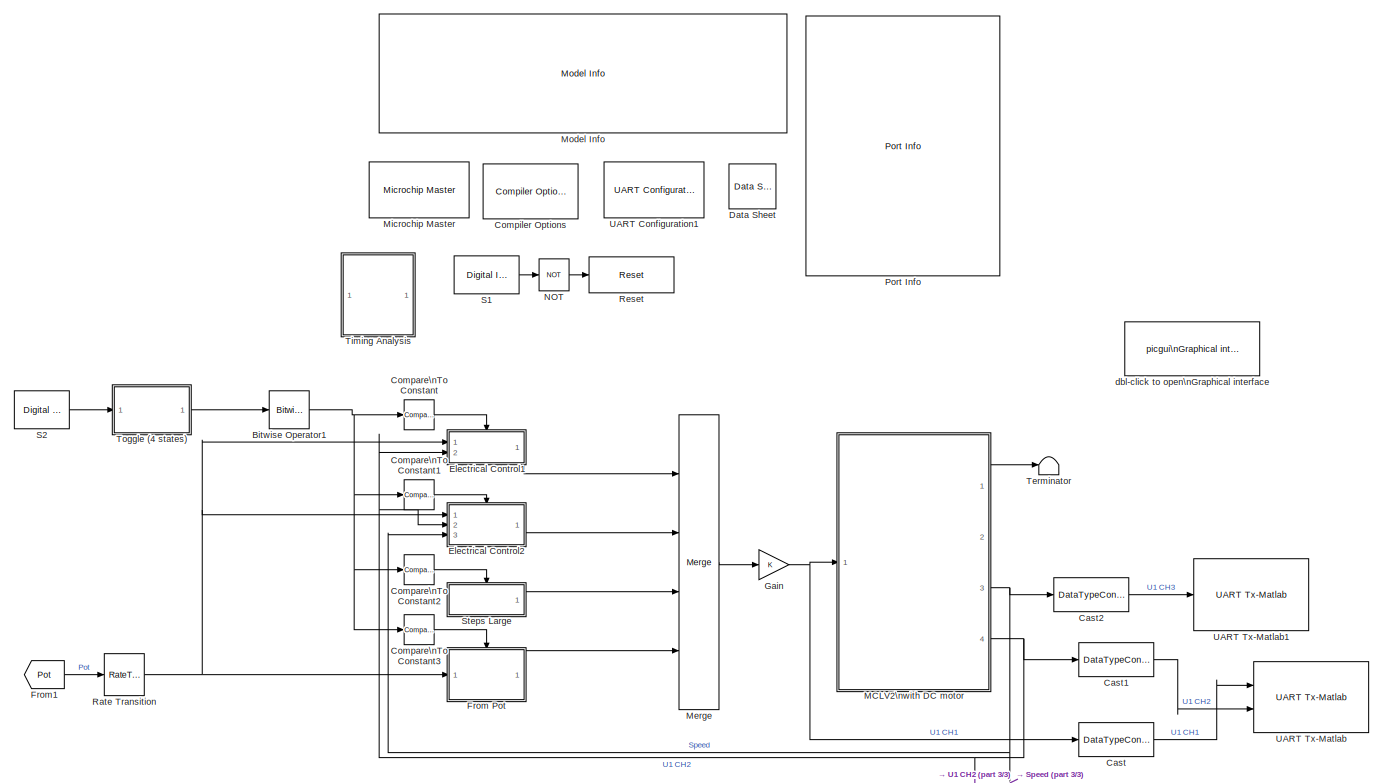
[diagram: root canvas - part 1/3, full width, middle band]
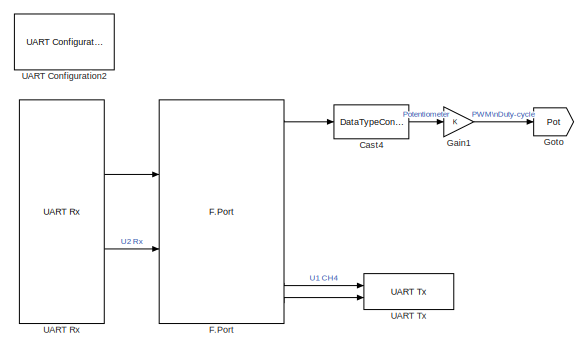
[diagram: root canvas - part 2/3, bottom left region]
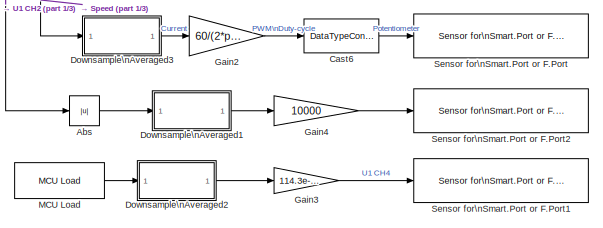
[diagram: root canvas - part 3/3, bottom right region]
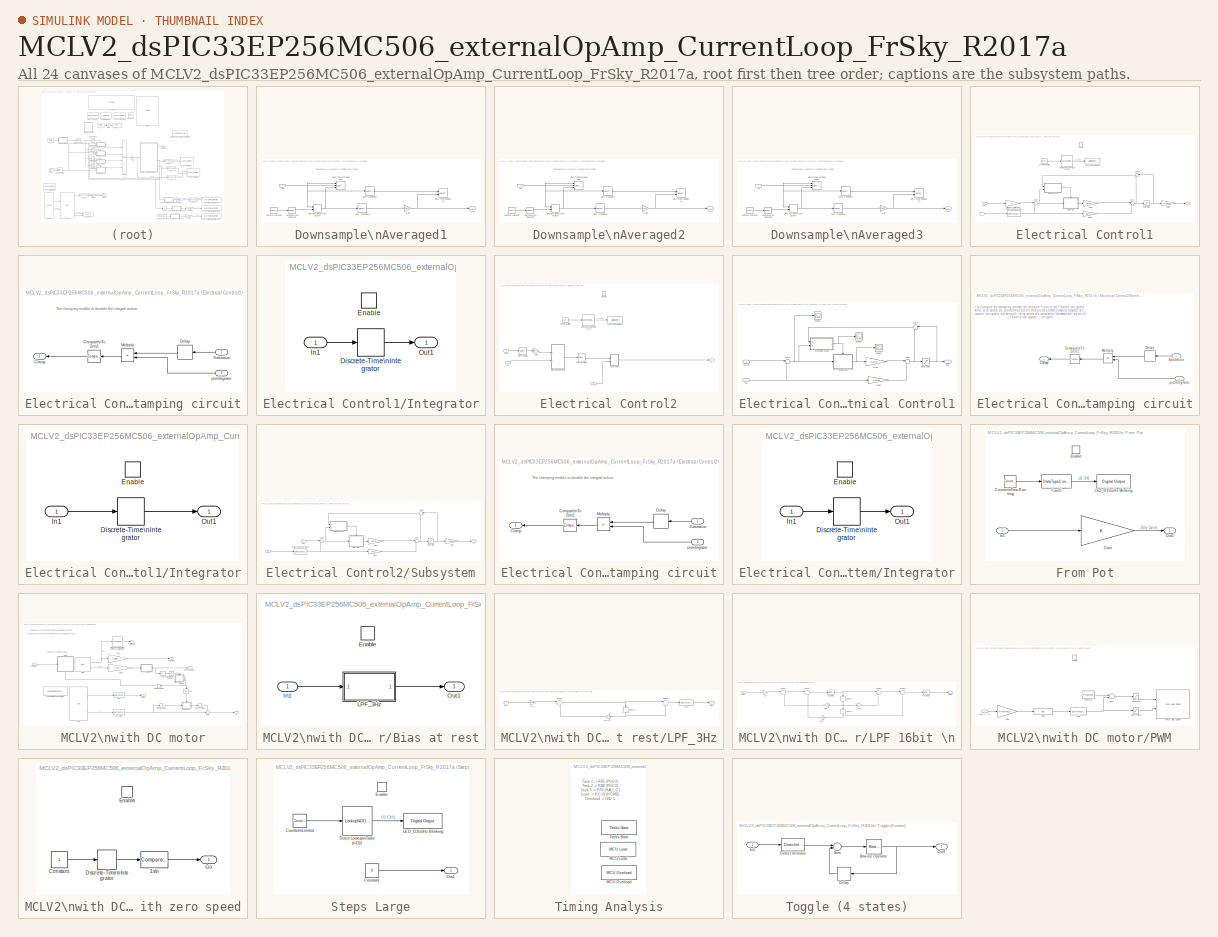
[diagram: thumbnail index - all 24 canvases of the model, root first then tree order]
MODEL MCLV2_dsPIC33EP256MC506_externalOpAmp_CurrentLoop_FrSky_R2017a
KIND model
BLOCK [Abs] Abs
  SID = 974
  SaturateOnIntegerOverflow = off
BLOCK [Reference] Bitwise Operator1  REF=simulink/Logic and Bit\nOperations/Bitwise\nOperator
  BitMask = 3
  BitMaskRealWorld = Stored Integer
  NumInputPorts = 1
  Ports = [1, 1]
  SID = 445
  SourceBlock = simulink/Logic and Bit\nOperations/Bitwise\nOperator
  SourceProductBaseCode = SL
  SourceProductName = Simulink
  SourceType = Bitwise Operator
  UseBitMask = on
  logicop = AND
BLOCK [DataTypeConversion] Cast
  ConvertRealWorld = Stored Integer (SI)
  OutDataTypeStr = int16
  RndMeth = Floor
  SID = 535
  SaturateOnIntegerOverflow = off
BLOCK [DataTypeConversion] Cast1
  ConvertRealWorld = Stored Integer (SI)
  OutDataTypeStr = int16
  RndMeth = Floor
  SID = 536
  SaturateOnIntegerOverflow = off
BLOCK [DataTypeConversion] Cast2
  ConvertRealWorld = Stored Integer (SI)
  OutDataTypeStr = int16
  RndMeth = Floor
  SID = 852
  SaturateOnIntegerOverflow = off
BLOCK [DataTypeConversion] Cast4
  ConvertRealWorld = Stored Integer (SI)
  OutDataTypeStr = fixdt(1,16,15)
  RndMeth = Floor
  SID = 967
  SaturateOnIntegerOverflow = off
BLOCK [DataTypeConversion] Cast6
  ConvertRealWorld = Stored Integer (SI)
  OutDataTypeStr = uint32
  RndMeth = Floor
  SID = 975
  SaturateOnIntegerOverflow = off
BLOCK [Reference] Compare\nTo Constant  REF=simulink/Logic and Bit\nOperations/Compare\nTo Constant
  OutDataTypeStr = boolean
  Ports = [1, 1]
  SID = 446
  SourceBlock = simulink/Logic and Bit\nOperations/Compare\nTo Constant
  SourceProductBaseCode = SL
  SourceProductName = Simulink
  SourceType = Compare To Constant
  ZeroCross = on
  const = 1
  relop = ==
BLOCK [Reference] Compare\nTo Constant1  REF=simulink/Logic and Bit\nOperations/Compare\nTo Constant
  OutDataTypeStr = boolean
  Ports = [1, 1]
  SID = 447
  SourceBlock = simulink/Logic and Bit\nOperations/Compare\nTo Constant
  SourceProductBaseCode = SL
  SourceProductName = Simulink
  SourceType = Compare To Constant
  ZeroCross = on
  const = 2
  relop = ==
BLOCK [Reference] Compare\nTo Constant2  REF=simulink/Logic and Bit\nOperations/Compare\nTo Constant
  OutDataTypeStr = boolean
  Ports = [1, 1]
  SID = 448
  SourceBlock = simulink/Logic and Bit\nOperations/Compare\nTo Constant
  SourceProductBaseCode = SL
  SourceProductName = Simulink
  SourceType = Compare To Constant
  ZeroCross = on
  const = 3
  relop = ==
BLOCK [Reference] Compare\nTo Constant3  REF=simulink/Logic and Bit\nOperations/Compare\nTo Constant
  OutDataTypeStr = boolean
  Ports = [1, 1]
  SID = 449
  SourceBlock = simulink/Logic and Bit\nOperations/Compare\nTo Constant
  SourceProductBaseCode = SL
  SourceProductName = Simulink
  SourceType = Compare To Constant
  ZeroCross = on
  const = 0
  relop = ==
BLOCK [Reference] Compiler Options  REF=MCHP_Blockset/System Configuration/Compiler Options
  AssemblyListing = on
  COMP_LIST = Dynamic Options
  COMP_LIST_TXT = xc16 - v1.35
  DEBUG_INFO = on
  HEAP_SIZE = 0
  LATEST_CMPLR = on
  MCHP_MASTERLINK = MCLV2_dsPIC33EP256MC506_externalOpAmp_CurrentLoop_FrSky_R2017a/Microchip Master
  MCHP_MULTITHREAD_COMPILATION = on
  MCODE = is less than 32768 (faster)
  MCONST = in code memory
  MDATA = Use only memory below address 8192 (faster)
  MPLAB_LINKLIB = default
  MPLAB_LINKLIB1 = default
  MSCALAR = Use only memory below address 8192 (faster)
  OMF = elf
  OMIT_FRAME_POINTER = off
  OPTIMIZATION_LEVEL = 1
  PROCEDURAL_ABSTRACTION = off
  Ports = []
  Priority = 1
  ProduceHexOutput = off
  SID = 779
  SourceBlock = MCHP_Blockset/System Configuration/Compiler Options
  SourceProductName = MPLAB Device Blocks for Simulink
  UNROLL_LOOPS = on
  USE_64BIT_DOUBLE = off
  UseCustom_LinkerScript = off
BLOCK [Reference] Data Sheet  REF=MCHP_Blockset/System Info/Data Sheet
  AttributesFormatString = %<cpy_MCHP_Id>
  DOC_FileLastCheckTime = [0 0 0 0 0 0]
  DOC_MCHP_Id = 33FJ64MC802
  DOC_Type = datasheet
  MCHP_MASTERLINK = MCLV2_dsPIC33EP256MC506_externalOpAmp_CurrentLoop_FrSky_R2017a/Microchip Master
  Ports = []
  SID = 781
  SourceBlock = MCHP_Blockset/System Info/Data Sheet
  SourceProductName = MPLAB Device Blocks for Simulink
  cpy_MCHP_Id = 33EP256MC506
BLOCK [SubSystem] Downsample\nAveraged1
  Ports = [1, 1]
  RequestExecContextInheritance = off
  SID = 976
BLOCK [Reference] Downsample\nAveraged1/Compare\nTo Constant  REF=simulink/Logic and Bit\nOperations/Compare\nTo Constant
  OutDataTypeStr = boolean
  Ports = [1, 1]
  SID = 978
  SourceBlock = simulink/Logic and Bit\nOperations/Compare\nTo Constant
  SourceProductBaseCode = SL
  SourceProductName = Simulink
  SourceType = Compare To Constant
  ZeroCross = on
  const = 1
  relop = ==
BLOCK [Reference] Downsample\nAveraged1/Counter\nLimited  REF=simulink/Sources/Counter\nLimited
  Ports = [0, 1]
  SID = 979
  SourceBlock = simulink/Sources/Counter\nLimited
  SourceProductBaseCode = SL
  SourceProductName = Simulink
  SourceType = Counter Limited
  tsamp = -1
  uplimit = DownSample-1
BLOCK [DataTypeDuplicate] Downsample\nAveraged1/Data Type\nDuplicate
  Ports = [2]
  SID = 980
BLOCK [Reference] Downsample\nAveraged1/Data Type\nPropagation  REF=simulink/Signal\nAttributes/Data Type\nPropagation
  BiasAdd = 0
  BiasBase = Bias1
  BiasMult = 1
  IfRefDouble = double
  IfRefSingle = single
  IsSigned = IsSigned1 or IsSigned2
  NumBitsAdd = 0
  NumBitsAllowFinal = 1:128
  NumBitsBase = NumBits1+NumBits2
  NumBitsMult = 1
  Ports = [3]
  PropDataType = fixdt(1, 16)
  PropDataTypeMode = Inherit via propagation rule
  PropScaling = 2^-10
  PropScalingMode = Inherit via propagation rule
  SID = 981
  SlopeAdd = 0
  SlopeBase = Slope1
  SlopeMult = 1
  SourceBlock = simulink/Signal\nAttributes/Data Type\nPropagation
  SourceProductBaseCode = SL
  SourceProductName = Simulink
  SourceType = Data Type Propagation
  ValuesUsedBestPrec = [5 -7]
BLOCK [DiscreteIntegrator] Downsample\nAveraged1/Discrete-Time\nIntegrator
  ExternalReset = sampled level
  ICPrevOutput = DiscIntNeverNeededParam
  ICPrevScaledInput = DiscIntNeverNeededParam
  InitialConditionSetting = State (most efficient)
  IntegratorMethod = Accumulation: Backward Euler
  OutDataTypeStr = Inherit: Inherit via back propagation
  Ports = [2, 1]
  SID = 982
  SampleTime = -1
  gainval = 1
BLOCK [Gain] Downsample\nAveraged1/Gain
  Gain = 1/DownSample
  OutDataTypeStr = Inherit: Inherit via back propagation
  ParamDataTypeStr = Inherit: Inherit via internal rule
  SID = 983
  SaturateOnIntegerOverflow = off
BLOCK [Inport] Downsample\nAveraged1/In1
  IconDisplay = Port number
  SID = 977
BLOCK [Outport] Downsample\nAveraged1/Out1
  IconDisplay = Port number
  SID = 986
BLOCK [RateTransition] Downsample\nAveraged1/Rate Transition1
  Deterministic = off
  OutPortSampleTime = [InputSampleTime * DownSample]
  SID = 984
BLOCK [RateTransition] Downsample\nAveraged1/Rate Transition3
  OutPortSampleTime = [InputSampleTime * DownSample]
  SID = 985
BLOCK [SubSystem] Downsample\nAveraged2
  Ports = [1, 1]
  RequestExecContextInheritance = off
  SID = 988
BLOCK [Reference] Downsample\nAveraged2/Compare\nTo Constant  REF=simulink/Logic and Bit\nOperations/Compare\nTo Constant
  OutDataTypeStr = boolean
  Ports = [1, 1]
  SID = 990
  SourceBlock = simulink/Logic and Bit\nOperations/Compare\nTo Constant
  SourceProductBaseCode = SL
  SourceProductName = Simulink
  SourceType = Compare To Constant
  ZeroCross = on
  const = 1
  relop = ==
BLOCK [Reference] Downsample\nAveraged2/Counter\nLimited  REF=simulink/Sources/Counter\nLimited
  Ports = [0, 1]
  SID = 991
  SourceBlock = simulink/Sources/Counter\nLimited
  SourceProductBaseCode = SL
  SourceProductName = Simulink
  SourceType = Counter Limited
  tsamp = -1
  uplimit = DownSample-1
BLOCK [DataTypeDuplicate] Downsample\nAveraged2/Data Type\nDuplicate
  Ports = [2]
  SID = 992
BLOCK [Reference] Downsample\nAveraged2/Data Type\nPropagation  REF=simulink/Signal\nAttributes/Data Type\nPropagation
  BiasAdd = 0
  BiasBase = Bias1
  BiasMult = 1
  IfRefDouble = double
  IfRefSingle = single
  IsSigned = IsSigned1 or IsSigned2
  NumBitsAdd = 0
  NumBitsAllowFinal = 1:128
  NumBitsBase = NumBits1+NumBits2
  NumBitsMult = 1
  Ports = [3]
  PropDataType = fixdt(1, 16)
  PropDataTypeMode = Inherit via propagation rule
  PropScaling = 2^-10
  PropScalingMode = Inherit via propagation rule
  SID = 993
  SlopeAdd = 0
  SlopeBase = Slope1
  SlopeMult = 1
  SourceBlock = simulink/Signal\nAttributes/Data Type\nPropagation
  SourceProductBaseCode = SL
  SourceProductName = Simulink
  SourceType = Data Type Propagation
  ValuesUsedBestPrec = [5 -7]
BLOCK [DiscreteIntegrator] Downsample\nAveraged2/Discrete-Time\nIntegrator
  ExternalReset = sampled level
  ICPrevOutput = DiscIntNeverNeededParam
  ICPrevScaledInput = DiscIntNeverNeededParam
  InitialConditionSetting = State (most efficient)
  IntegratorMethod = Accumulation: Backward Euler
  OutDataTypeStr = Inherit: Inherit via back propagation
  Ports = [2, 1]
  SID = 994
  SampleTime = -1
  gainval = 1
BLOCK [Gain] Downsample\nAveraged2/Gain
  Gain = 1/DownSample
  OutDataTypeStr = Inherit: Inherit via back propagation
  ParamDataTypeStr = Inherit: Inherit via internal rule
  SID = 995
  SaturateOnIntegerOverflow = off
BLOCK [Inport] Downsample\nAveraged2/In1
  IconDisplay = Port number
  SID = 989
BLOCK [Outport] Downsample\nAveraged2/Out1
  IconDisplay = Port number
  SID = 998
BLOCK [RateTransition] Downsample\nAveraged2/Rate Transition1
  Deterministic = off
  OutPortSampleTime = [InputSampleTime * DownSample]
  SID = 996
BLOCK [RateTransition] Downsample\nAveraged2/Rate Transition3
  OutPortSampleTime = [InputSampleTime * DownSample]
  SID = 997
BLOCK [SubSystem] Downsample\nAveraged3
  Ports = [1, 1]
  RequestExecContextInheritance = off
  SID = 1000
BLOCK [Reference] Downsample\nAveraged3/Compare\nTo Constant  REF=simulink/Logic and Bit\nOperations/Compare\nTo Constant
  OutDataTypeStr = boolean
  Ports = [1, 1]
  SID = 1002
  SourceBlock = simulink/Logic and Bit\nOperations/Compare\nTo Constant
  SourceProductBaseCode = SL
  SourceProductName = Simulink
  SourceType = Compare To Constant
  ZeroCross = on
  const = 1
  relop = ==
BLOCK [Reference] Downsample\nAveraged3/Counter\nLimited  REF=simulink/Sources/Counter\nLimited
  Ports = [0, 1]
  SID = 1003
  SourceBlock = simulink/Sources/Counter\nLimited
  SourceProductBaseCode = SL
  SourceProductName = Simulink
  SourceType = Counter Limited
  tsamp = -1
  uplimit = DownSample-1
BLOCK [DataTypeDuplicate] Downsample\nAveraged3/Data Type\nDuplicate
  Ports = [2]
  SID = 1004
BLOCK [Reference] Downsample\nAveraged3/Data Type\nPropagation  REF=simulink/Signal\nAttributes/Data Type\nPropagation
  BiasAdd = 0
  BiasBase = Bias1
  BiasMult = 1
  IfRefDouble = double
  IfRefSingle = single
  IsSigned = IsSigned1 or IsSigned2
  NumBitsAdd = 0
  NumBitsAllowFinal = 1:128
  NumBitsBase = NumBits1+NumBits2
  NumBitsMult = 1
  Ports = [3]
  PropDataType = fixdt(1, 16)
  PropDataTypeMode = Inherit via propagation rule
  PropScaling = 2^-10
  PropScalingMode = Inherit via propagation rule
  SID = 1005
  SlopeAdd = 0
  SlopeBase = Slope1
  SlopeMult = 1
  SourceBlock = simulink/Signal\nAttributes/Data Type\nPropagation
  SourceProductBaseCode = SL
  SourceProductName = Simulink
  SourceType = Data Type Propagation
  ValuesUsedBestPrec = [5 -7]
BLOCK [DiscreteIntegrator] Downsample\nAveraged3/Discrete-Time\nIntegrator
  ExternalReset = sampled level
  ICPrevOutput = DiscIntNeverNeededParam
  ICPrevScaledInput = DiscIntNeverNeededParam
  InitialConditionSetting = State (most efficient)
  IntegratorMethod = Accumulation: Backward Euler
  OutDataTypeStr = Inherit: Inherit via back propagation
  Ports = [2, 1]
  SID = 1006
  SampleTime = -1
  gainval = 1
BLOCK [Gain] Downsample\nAveraged3/Gain
  Gain = 1/DownSample
  OutDataTypeStr = Inherit: Inherit via back propagation
  ParamDataTypeStr = Inherit: Inherit via internal rule
  SID = 1007
  SaturateOnIntegerOverflow = off
BLOCK [Inport] Downsample\nAveraged3/In1
  IconDisplay = Port number
  SID = 1001
BLOCK [Outport] Downsample\nAveraged3/Out1
  IconDisplay = Port number
  SID = 1010
BLOCK [RateTransition] Downsample\nAveraged3/Rate Transition1
  Deterministic = off
  OutPortSampleTime = [InputSampleTime * DownSample]
  SID = 1008
BLOCK [RateTransition] Downsample\nAveraged3/Rate Transition3
  OutPortSampleTime = [InputSampleTime * DownSample]
  SID = 1009
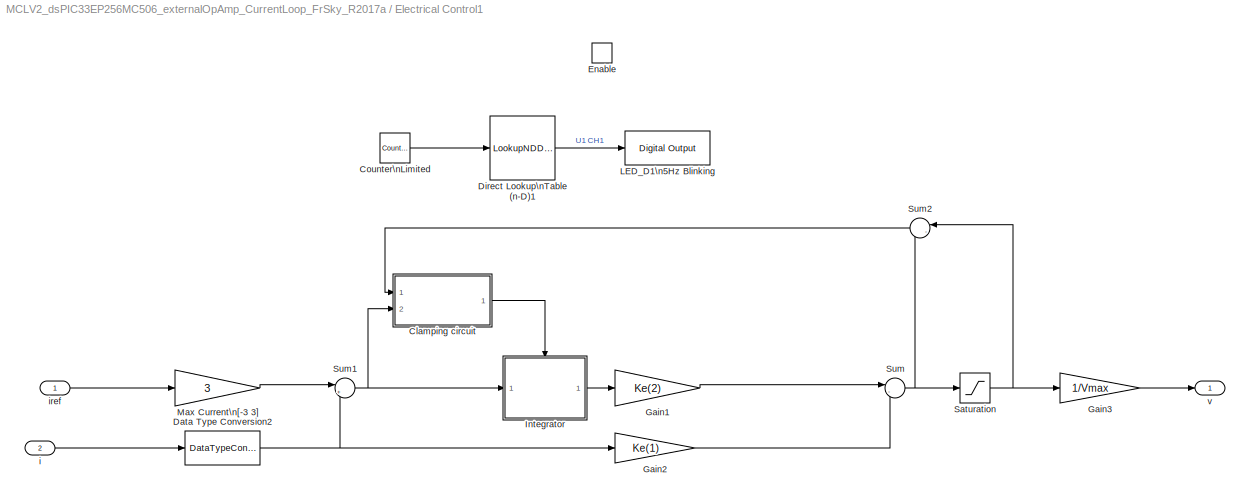
BLOCK [SubSystem] Electrical Control1
  Ports = [2, 1, 1]
  RequestExecContextInheritance = off
  SID = 854
BLOCK [SubSystem] Electrical Control1/Clamping circuit
  Ports = [2, 1]
  RequestExecContextInheritance = off
  SID = 857
BLOCK [Outport] Electrical Control1/Clamping circuit/Clamp
  DisableCoverage = on
  IconDisplay = Port number
  SID = 863
BLOCK [Reference] Electrical Control1/Clamping circuit/Compare\nTo Zero1  REF=simulink/Logic and Bit\nOperations/Compare\nTo Zero
  OutDataTypeStr = boolean
  Ports = [1, 1]
  SID = 860
  SourceBlock = simulink/Logic and Bit\nOperations/Compare\nTo Zero
  SourceProductBaseCode = SL
  SourceProductName = Simulink
  SourceType = Compare To Zero
  ZeroCross = on
  relop = <=
BLOCK [Delay] Electrical Control1/Clamping circuit/Delay
  DelayLength = 1
  InitialCondition = 0
  InputPortMap = u0
  Ports = [1, 1]
  SID = 861
BLOCK [Product] Electrical Control1/Clamping circuit/Multiply
  InputSameDT = off
  OutDataTypeStr = Inherit: Inherit via internal rule
  Ports = [2, 1]
  RndMeth = Floor
  SID = 862
  SaturateOnIntegerOverflow = off
BLOCK [Inport] Electrical Control1/Clamping circuit/Saturation
  DisableCoverage = on
  IconDisplay = Port number
  SID = 858
BLOCK [Inport] Electrical Control1/Clamping circuit/preIntegrator
  DisableCoverage = on
  IconDisplay = Port number
  Port = 2
  SID = 859
  VarSizeSig = No
BLOCK [Reference] Electrical Control1/Counter\nLimited  REF=simulink/Sources/Counter\nLimited
  Ports = [0, 1]
  SID = 962
  SourceBlock = simulink/Sources/Counter\nLimited
  SourceProductBaseCode = SL
  SourceProductName = Simulink
  SourceType = Counter Limited
  tsamp = .1
  uplimit = 9
BLOCK [DataTypeConversion] Electrical Control1/Data Type Conversion2
  RndMeth = Floor
  SID = 853
BLOCK [LookupNDDirect] Electrical Control1/Direct Lookup\nTable (n-D)1
  NumberOfTableDimensions = 1
  Ports = [1, 1]
  SID = 963
  Table = [1 0 0 0 0 0 0 0 0 0]
  TableDataTypeStr = boolean
BLOCK [EnablePort] Electrical Control1/Enable
  Ports = []
  SID = 571
  StatesWhenEnabling = reset
BLOCK [Gain] Electrical Control1/Gain1
  Gain = Ke(2)
  OutDataTypeStr = fixdt(1,16)
  OutMax = [2*Vmax]
  OutMin = [2*Vmin]
  ParamDataTypeStr = Inherit: Inherit via internal rule
  SID = 865
  SaturateOnIntegerOverflow = off
BLOCK [Gain] Electrical Control1/Gain2
  Gain = Ke(1)
  OutDataTypeStr = fixdt(1,16)
  OutMax = [2*Vmax]
  OutMin = [2*Vmin]
  ParamDataTypeStr = Inherit: Inherit via internal rule
  SID = 866
  SaturateOnIntegerOverflow = off
BLOCK [Gain] Electrical Control1/Gain3
  Gain = 1/Vmax
  OutDataTypeStr = fixdt(1,16,15)
  ParamDataTypeStr = Inherit: Inherit via internal rule
  SID = 878
BLOCK [SubSystem] Electrical Control1/Integrator
  Ports = [1, 1, 1]
  RequestExecContextInheritance = off
  SID = 867
BLOCK [DiscreteIntegrator] Electrical Control1/Integrator/Discrete-Time\nIntegrator
  ICPrevOutput = DiscIntNeverNeededParam
  ICPrevScaledInput = DiscIntNeverNeededParam
  InitialConditionSetting = State (most efficient)
  OutDataTypeStr = fixdt(1,32)
  OutMax = [2*Imax]
  OutMin = [2*Imin]
  Ports = [1, 1]
  SID = 870
  SampleTime = Ts
BLOCK [EnablePort] Electrical Control1/Integrator/Enable
  Ports = []
  SID = 869
BLOCK [Inport] Electrical Control1/Integrator/In1
  IconDisplay = Port number
  SID = 868
BLOCK [Outport] Electrical Control1/Integrator/Out1
  IconDisplay = Port number
  SID = 871
BLOCK [Reference] Electrical Control1/LED_D1\n5Hz Blinking  REF=MCHP_Blockset/Digital IO/Digital Output
  MCHP_MASTERLINK = MCLV2_dsPIC33EP256MC506_externalOpAmp_CurrentLoop_FrSky_R2017a/Microchip Master
  ORDERING = None
  PACK = off
  PIN = 6
  PORT = Dynamic Options
  PORT_TXT = D   [ 5  6  8 ]
  Ports = [1]
  READPREVIOUS = off
  SID = 964
  SIMULTANEOUS = off
  SampleTime = -1
  SourceBlock = MCHP_Blockset/Digital IO/Digital Output
  SourceProductName = MPLAB Device Blocks for Simulink
BLOCK [Gain] Electrical Control1/Max Current\n[-3 3]
  Gain = 3
  OutDataTypeStr = fixdt(1,16)
  OutMax = 3
  OutMin = -3
  ParamDataTypeStr = Inherit: Inherit via internal rule
  SID = 909
  SaturateOnIntegerOverflow = off
BLOCK [Saturate] Electrical Control1/Saturation
  InputPortMap = u0
  LowerLimit = Vmin
  Ports = [1, 1]
  SID = 872
  UpperLimit = Vmax
BLOCK [Sum] Electrical Control1/Sum
  IconShape = round
  InputSameDT = off
  Inputs = |--
  OutDataTypeStr = Inherit: Inherit via internal rule
  Ports = [2, 1]
  SID = 873
BLOCK [Sum] Electrical Control1/Sum1
  IconShape = round
  InputSameDT = off
  Inputs = |+-
  OutDataTypeStr = fixdt(1,16)
  OutMax = [2*Imax]
  OutMin = [2*Imin]
  Ports = [2, 1]
  SID = 874
BLOCK [Sum] Electrical Control1/Sum2
  AccumDataTypeStr = Inherit: Same as first input
  IconShape = round
  InputSameDT = off
  Inputs = |-+
  OutDataTypeStr = Inherit: Same as accumulator
  Ports = [2, 1]
  SID = 875
  SaturateOnIntegerOverflow = off
BLOCK [Inport] Electrical Control1/i
  IconDisplay = Port number
  Port = 2
  SID = 856
BLOCK [Inport] Electrical Control1/iref
  IconDisplay = Port number
  SID = 855
BLOCK [Outport] Electrical Control1/v
  IconDisplay = Port number
  SID = 876
BLOCK [SubSystem] Electrical Control2
  Ports = [3, 1, 1]
  RequestExecContextInheritance = off
  SID = 879
BLOCK [Reference] Electrical Control2/Counter\nLimited  REF=simulink/Sources/Counter\nLimited
  Ports = [0, 1]
  SID = 958
  SourceBlock = simulink/Sources/Counter\nLimited
  SourceProductBaseCode = SL
  SourceProductName = Simulink
  SourceType = Counter Limited
  tsamp = .1
  uplimit = 9
BLOCK [LookupNDDirect] Electrical Control2/Direct Lookup\nTable (n-D)1
  NumberOfTableDimensions = 1
  Ports = [1, 1]
  SID = 959
  Table = [1 0 1 0 0 0 0 0 0 0]
  TableDataTypeStr = boolean
BLOCK [EnablePort] Electrical Control2/Enable
  Ports = []
  SID = 882
  StatesWhenEnabling = reset
BLOCK [Gain] Electrical Control2/Gain
  Gain = 350
  OutDataTypeStr = Inherit: Inherit via back propagation
  ParamDataTypeStr = Inherit: Inherit via internal rule
  SID = 939
  SaturateOnIntegerOverflow = off
BLOCK [Reference] Electrical Control2/LED_D1\n5Hz Blinking  REF=MCHP_Blockset/Digital IO/Digital Output
  MCHP_MASTERLINK = MCLV2_dsPIC33EP256MC506_externalOpAmp_CurrentLoop_FrSky_R2017a/Microchip Master
  ORDERING = None
  PACK = off
  PIN = 6
  PORT = Dynamic Options
  PORT_TXT = D   [ 5  6  8 ]
  Ports = [1]
  READPREVIOUS = off
  SID = 960
  SIMULTANEOUS = off
  SampleTime = -1
  SourceBlock = MCHP_Blockset/Digital IO/Digital Output
  SourceProductName = MPLAB Device Blocks for Simulink
BLOCK [SubSystem] Electrical Control2/Mechanical Control1
  Ports = [2, 1]
  RequestExecContextInheritance = off
  SID = 910
BLOCK [SubSystem] Electrical Control2/Mechanical Control1/Clamping circuit
  Ports = [2, 1]
  RequestExecContextInheritance = off
  SID = 913
BLOCK [Outport] Electrical Control2/Mechanical Control1/Clamping circuit/Clamp
  DisableCoverage = on
  IconDisplay = Port number
  SID = 919
BLOCK [Reference] Electrical Control2/Mechanical Control1/Clamping circuit/Compare\nTo Zero1  REF=simulink/Logic and Bit\nOperations/Compare\nTo Zero
  OutDataTypeStr = boolean
  Ports = [1, 1]
  SID = 916
  SourceBlock = simulink/Logic and Bit\nOperations/Compare\nTo Zero
  SourceProductBaseCode = SL
  SourceProductName = Simulink
  SourceType = Compare To Zero
  ZeroCross = on
  relop = <=
BLOCK [Delay] Electrical Control2/Mechanical Control1/Clamping circuit/Delay
  DelayLength = 1
  InitialCondition = 0
  InputPortMap = u0
  Ports = [1, 1]
  SID = 917
  SampleTime = TsMeca
BLOCK [Product] Electrical Control2/Mechanical Control1/Clamping circuit/Multiply
  InputSameDT = off
  OutDataTypeStr = Inherit: Inherit via internal rule
  Ports = [2, 1]
  RndMeth = Floor
  SID = 918
  SaturateOnIntegerOverflow = off
BLOCK [Inport] Electrical Control2/Mechanical Control1/Clamping circuit/Saturation
  DisableCoverage = on
  IconDisplay = Port number
  SID = 914
BLOCK [Inport] Electrical Control2/Mechanical Control1/Clamping circuit/preIntegrator
  DisableCoverage = on
  IconDisplay = Port number
  Port = 2
  SID = 915
  VarSizeSig = No
BLOCK [Gain] Electrical Control2/Mechanical Control1/Gain1
  Gain = Km(2)
  OutDataTypeStr = fixdt(1,16)
  OutMax = [2*Imax]
  OutMin = [-2*Imax]
  ParamDataTypeStr = Inherit: Inherit via internal rule
  SID = 921
  SaturateOnIntegerOverflow = off
BLOCK [Gain] Electrical Control2/Mechanical Control1/Gain2
  Gain = Km(1)
  OutDataTypeStr = fixdt(1,16)
  OutMax = [2*Imax]
  OutMin = [-2*Imax]
  ParamDataTypeStr = Inherit: Inherit via internal rule
  SID = 922
  SaturateOnIntegerOverflow = off
BLOCK [SubSystem] Electrical Control2/Mechanical Control1/Integrator
  Ports = [1, 1, 1]
  RequestExecContextInheritance = off
  SID = 923
BLOCK [DiscreteIntegrator] Electrical Control2/Mechanical Control1/Integrator/Discrete-Time\nIntegrator
  ICPrevOutput = DiscIntNeverNeededParam
  ICPrevScaledInput = DiscIntNeverNeededParam
  InitialConditionSetting = State (most efficient)
  OutDataTypeStr = fixdt(1,32)
  OutMax = [2*Ommax]
  OutMin = [2*Ommin]
  Ports = [1, 1]
  SID = 926
  SampleTime = TsMeca
BLOCK [EnablePort] Electrical Control2/Mechanical Control1/Integrator/Enable
  Ports = []
  SID = 925
BLOCK [Inport] Electrical Control2/Mechanical Control1/Integrator/In1
  IconDisplay = Port number
  SID = 924
BLOCK [Outport] Electrical Control2/Mechanical Control1/Integrator/Out1
  IconDisplay = Port number
  SID = 927
BLOCK [Saturate] Electrical Control2/Mechanical Control1/Saturation
  InputPortMap = u0
  LowerLimit = Imin
  Ports = [1, 1]
  SID = 928
  UpperLimit = Imax
BLOCK [Scope] Electrical Control2/Mechanical Control1/Scope
  Floating = off
  NumInputPorts = 1
  Ports = [1]
  SID = 929
  ScopeSpecificationString = Simulink.scopes.TimeScopeBlockCfg('CurrentConfiguration', extmgr.ConfigurationSet(extmgr.Configuration('Core','General UI',true),extmgr.Configuration('Core','Source UI',true),extmgr.Configuration('Sources','WiredSimulink',true,'DataLoggingVariableName','ScopeData2'),extmgr.Configuration('Visuals','Time Domain',true,'SerializedDisplays',{struct('MinYLimReal','-251.19531','MaxYLimReal','250.13281','...<+1406ch>
BLOCK [Scope] Electrical Control2/Mechanical Control1/Scope1
  Floating = off
  NumInputPorts = 1
  Ports = [1]
  SID = 930
  ScopeSpecificationString = Simulink.scopes.TimeScopeBlockCfg('CurrentConfiguration', extmgr.ConfigurationSet(extmgr.Configuration('Core','General UI',true),extmgr.Configuration('Core','Source UI',true),extmgr.Configuration('Sources','WiredSimulink',true,'DataLoggingVariableName','ScopeData3'),extmgr.Configuration('Visuals','Time Domain',true,'SerializedDisplays',{struct('MinYLimReal','-6.72581','MaxYLimReal','37.52422','YLa...<+1402ch>
BLOCK [Scope] Electrical Control2/Mechanical Control1/Scope2
  Floating = off
  NumInputPorts = 1
  Ports = [1]
  SID = 931
  ScopeSpecificationString = Simulink.scopes.TimeScopeBlockCfg('CurrentConfiguration', extmgr.ConfigurationSet(extmgr.Configuration('Core','General UI',true),extmgr.Configuration('Core','Source UI',true),extmgr.Configuration('Sources','WiredSimulink',true,'DataLoggingVariableName','ScopeData4'),extmgr.Configuration('Visuals','Time Domain',true,'SerializedDisplays',{struct('MinYLimReal','0.9','MaxYLimReal','1.1','YLabelReal','...<+1370ch>
BLOCK [Sum] Electrical Control2/Mechanical Control1/Sum
  IconShape = round
  InputSameDT = off
  Inputs = |--
  OutDataTypeStr = Inherit: Inherit via internal rule
  Ports = [2, 1]
  SID = 932
BLOCK [Sum] Electrical Control2/Mechanical Control1/Sum1
  IconShape = round
  InputSameDT = off
  Inputs = |+-
  OutDataTypeStr = fixdt(1,16)
  OutMax = [2*Ommax]
  OutMin = [2*Ommin]
  Ports = [2, 1]
  SID = 933
BLOCK [Sum] Electrical Control2/Mechanical Control1/Sum2
  AccumDataTypeStr = Inherit: Same as first input
  IconShape = round
  InputSameDT = off
  Inputs = |-+
  OutDataTypeStr = Inherit: Same as accumulator
  Ports = [2, 1]
  SID = 934
  SaturateOnIntegerOverflow = off
BLOCK [Outport] Electrical Control2/Mechanical Control1/iref
  IconDisplay = Port number
  SID = 935
BLOCK [Inport] Electrical Control2/Mechanical Control1/om
  IconDisplay = Port number
  Port = 2
  SID = 912
BLOCK [Inport] Electrical Control2/Mechanical Control1/omref
  IconDisplay = Port number
  OutDataTypeStr = fixdt(1,16)
  OutMax = [Ommax]
  OutMin = [Ommin]
  SID = 911
BLOCK [RateTransition] Electrical Control2/Rate Transition
  Deterministic = off
  SID = 940
BLOCK [RateTransition] Electrical Control2/Rate Transition2
  Deterministic = off
  SID = 936
BLOCK [SubSystem] Electrical Control2/Subsystem
  Ports = [2, 1]
  RequestExecContextInheritance = off
  SID = 905
BLOCK [SubSystem] Electrical Control2/Subsystem/Clamping circuit
  Ports = [2, 1]
  RequestExecContextInheritance = off
  SID = 883
BLOCK [Outport] Electrical Control2/Subsystem/Clamping circuit/Clamp
  DisableCoverage = on
  IconDisplay = Port number
  SID = 889
BLOCK [Reference] Electrical Control2/Subsystem/Clamping circuit/Compare\nTo Zero1  REF=simulink/Logic and Bit\nOperations/Compare\nTo Zero
  OutDataTypeStr = boolean
  Ports = [1, 1]
  SID = 886
  SourceBlock = simulink/Logic and Bit\nOperations/Compare\nTo Zero
  SourceProductBaseCode = SL
  SourceProductName = Simulink
  SourceType = Compare To Zero
  ZeroCross = on
  relop = <=
BLOCK [Delay] Electrical Control2/Subsystem/Clamping circuit/Delay
  DelayLength = 1
  InitialCondition = 0
  InputPortMap = u0
  Ports = [1, 1]
  SID = 887
BLOCK [Product] Electrical Control2/Subsystem/Clamping circuit/Multiply
  InputSameDT = off
  OutDataTypeStr = Inherit: Inherit via internal rule
  Ports = [2, 1]
  RndMeth = Floor
  SID = 888
  SaturateOnIntegerOverflow = off
BLOCK [Inport] Electrical Control2/Subsystem/Clamping circuit/Saturation
  DisableCoverage = on
  IconDisplay = Port number
  SID = 884
BLOCK [Inport] Electrical Control2/Subsystem/Clamping circuit/preIntegrator
  DisableCoverage = on
  IconDisplay = Port number
  Port = 2
  SID = 885
  VarSizeSig = No
BLOCK [DataTypeConversion] Electrical Control2/Subsystem/Data Type Conversion2
  RndMeth = Floor
  SID = 891
BLOCK [Gain] Electrical Control2/Subsystem/Gain1
  Gain = Ke(2)
  OutDataTypeStr = fixdt(1,16)
  OutMax = [2*Vmax]
  OutMin = [2*Vmin]
  ParamDataTypeStr = Inherit: Inherit via internal rule
  SID = 892
  SaturateOnIntegerOverflow = off
BLOCK [Gain] Electrical Control2/Subsystem/Gain2
  Gain = Ke(1)
  OutDataTypeStr = fixdt(1,16)
  OutMax = [2*Vmax]
  OutMin = [2*Vmin]
  ParamDataTypeStr = Inherit: Inherit via internal rule
  SID = 893
  SaturateOnIntegerOverflow = off
BLOCK [Gain] Electrical Control2/Subsystem/Gain3
  Gain = 1/Vmax
  OutDataTypeStr = fixdt(1,16,15)
  ParamDataTypeStr = Inherit: Inherit via internal rule
  SID = 894
BLOCK [SubSystem] Electrical Control2/Subsystem/Integrator
  Ports = [1, 1, 1]
  RequestExecContextInheritance = off
  SID = 895
BLOCK [DiscreteIntegrator] Electrical Control2/Subsystem/Integrator/Discrete-Time\nIntegrator
  ICPrevOutput = DiscIntNeverNeededParam
  ICPrevScaledInput = DiscIntNeverNeededParam
  InitialConditionSetting = State (most efficient)
  OutDataTypeStr = fixdt(1,32)
  OutMax = [2*Imax]
  OutMin = [2*Imin]
  Ports = [1, 1]
  SID = 898
  SampleTime = Ts
BLOCK [EnablePort] Electrical Control2/Subsystem/Integrator/Enable
  Ports = []
  SID = 897
BLOCK [Inport] Electrical Control2/Subsystem/Integrator/In1
  IconDisplay = Port number
  SID = 896
BLOCK [Outport] Electrical Control2/Subsystem/Integrator/Out1
  IconDisplay = Port number
  SID = 899
BLOCK [Saturate] Electrical Control2/Subsystem/Saturation
  InputPortMap = u0
  LowerLimit = Vmin
  Ports = [1, 1]
  SID = 900
  UpperLimit = Vmax
BLOCK [Sum] Electrical Control2/Subsystem/Sum
  IconShape = round
  InputSameDT = off
  Inputs = |--
  OutDataTypeStr = Inherit: Inherit via internal rule
  Ports = [2, 1]
  SID = 901
BLOCK [Sum] Electrical Control2/Subsystem/Sum1
  IconShape = round
  InputSameDT = off
  Inputs = |+-
  OutDataTypeStr = fixdt(1,16)
  OutMax = [2*Imax]
  OutMin = [2*Imin]
  Ports = [2, 1]
  SID = 902
BLOCK [Sum] Electrical Control2/Subsystem/Sum2
  AccumDataTypeStr = Inherit: Same as first input
  IconShape = round
  InputSameDT = off
  Inputs = |-+
  OutDataTypeStr = Inherit: Same as accumulator
  Ports = [2, 1]
  SID = 903
  SaturateOnIntegerOverflow = off
BLOCK [Inport] Electrical Control2/Subsystem/i
  IconDisplay = Port number
  Port = 2
  SID = 907
BLOCK [Inport] Electrical Control2/Subsystem/iref
  IconDisplay = Port number
  SID = 906
BLOCK [Outport] Electrical Control2/Subsystem/v
  IconDisplay = Port number
  SID = 908
BLOCK [Inport] Electrical Control2/i
  IconDisplay = Port number
  Port = 2
  SID = 881
BLOCK [Inport] Electrical Control2/om
  IconDisplay = Port number
  Port = 3
  SID = 937
BLOCK [Inport] Electrical Control2/omref
  IconDisplay = Port number
  SID = 938
BLOCK [Outport] Electrical Control2/v
  IconDisplay = Port number
  SID = 904
BLOCK [Reference] F.Port  REF=UxV_Blockset/RECEIVER/F.Port
  FPort_InputVectorFormat = Values from index M+1 are discarded; with M a block input
  FPort_InputVectorSize = 12
  InputStream = Dynamic Options
  InputStream_TXT = 0
  OUTPUT_BUS = scalars decoded values
  OUTPUT_BUS_SPort = scalars decoded values
  Ports = [2, 10]
  SBUS_CH1 = [-32768 32736]
  SBUS_CH10 = Not used
  SBUS_CH11 = Not used
  SBUS_CH12 = Not used
  SBUS_CH13 = Not used
  SBUS_CH14 = Not used
  SBUS_CH15 = Not used
  SBUS_CH16 = Not used
  SBUS_CH17 = off
  SBUS_CH18 = off
  SBUS_CH2 = [-1024 1023]
  SBUS_CH3 = [-1024 1023]
  SBUS_CH4 = [-1024 1023]
  SBUS_CH5 = [-1024 1023]
  SBUS_CH6 = [-1024 1023]
  SBUS_CH7 = [-1024 1023]
  SBUS_CH8 = [-1024 1023]
  SBUS_CH9 = Not used
  SBUS_CRC_Nok = off
  SBUS_FailSafe = off
  SBUS_FrameLost = off
  SBUS_NewControlFrame = off
  SBUS_RSSI = off
  SID = 968
  SPort_AppId = off
  SPort_CRC = off
  SPort_CRC_Nok = off
  SPort_DATA = off
  SPort_NewDownlinkFrame = off
  SPort_PRIM = off
  SampleTime = -1
  SourceBlock = UxV_Blockset/RECEIVER/F.Port
  SourceProductName = UxV_Blocks
  SourceType = F.Port protocol parser (without PhyId)
  Uplink_Enabled = on
  UserData = DataTag0
  UserDataPersistent = on
  UxV_CRC = 767826
BLOCK [SubSystem] From Pot
  Ports = [1, 1, 1]
  RequestExecContextInheritance = off
  SID = 450
BLOCK [DataTypeConversion] From Pot/Cast5
  OutDataTypeStr = boolean
  RndMeth = Floor
  SID = 339
  SaturateOnIntegerOverflow = off
BLOCK [Reference] From Pot/Counter\nFree-Running  REF=simulink/Sources/Counter\nFree-Running
  NumBits = 1
  Ports = [0, 1]
  SID = 338
  SourceBlock = simulink/Sources/Counter\nFree-Running
  SourceProductBaseCode = SL
  SourceProductName = Simulink
  SourceType = Counter Free-Running
  tsamp = .1
BLOCK [EnablePort] From Pot/Enable
  Ports = []
  SID = 452
BLOCK [Gain] From Pot/Gain
  OutDataTypeStr = fixdt(1,16,15)
  ParamDataTypeStr = Inherit: Inherit via internal rule
  SID = 453
  SaturateOnIntegerOverflow = off
BLOCK [Inport] From Pot/In1
  IconDisplay = Port number
  SID = 451
BLOCK [Reference] From Pot/LED_D1\n5Hz Blinking  REF=MCHP_Blockset/Digital IO/Digital Output
  MCHP_MASTERLINK = MCLV2_dsPIC33EP256MC506_externalOpAmp_CurrentLoop_FrSky_R2017a/Microchip Master
  ORDERING = None
  PACK = off
  PIN = 6
  PORT = Dynamic Options
  PORT_TXT = D   [ 5  6  8 ]
  Ports = [1]
  READPREVIOUS = off
  SID = 334
  SIMULTANEOUS = off
  SampleTime = -1
  SourceBlock = MCHP_Blockset/Digital IO/Digital Output
  SourceProductName = MPLAB Device Blocks for Simulink
BLOCK [Outport] From Pot/Out1
  IconDisplay = Port number
  SID = 454
BLOCK [From] From1
  GotoTag = Pot
  SID = 455
BLOCK [Gain] Gain
  ParamDataTypeStr = Inherit: Inherit via internal rule
  SID = 312
BLOCK [Gain] Gain1
  ParamDataTypeStr = Inherit: Inherit via internal rule
  SID = 969
BLOCK [Gain] Gain2
  Gain = 60/(2*pi)
  OutDataTypeStr = int32
  ParamDataTypeStr = Inherit: Inherit via internal rule
  SID = 1012
BLOCK [Gain] Gain3
  Gain = 114.3e-9/0.002*1e4
  OutDataTypeStr = uint32
  ParamDataTypeStr = fixdt(0,16)
  SID = 1013
BLOCK [Gain] Gain4
  Gain = 10000
  OutDataTypeStr = uint32
  ParamDataTypeStr = Inherit: Inherit via internal rule
  SID = 1014
  SaturateOnIntegerOverflow = off
BLOCK [Goto] Goto
  GotoTag = Pot
  SID = 350
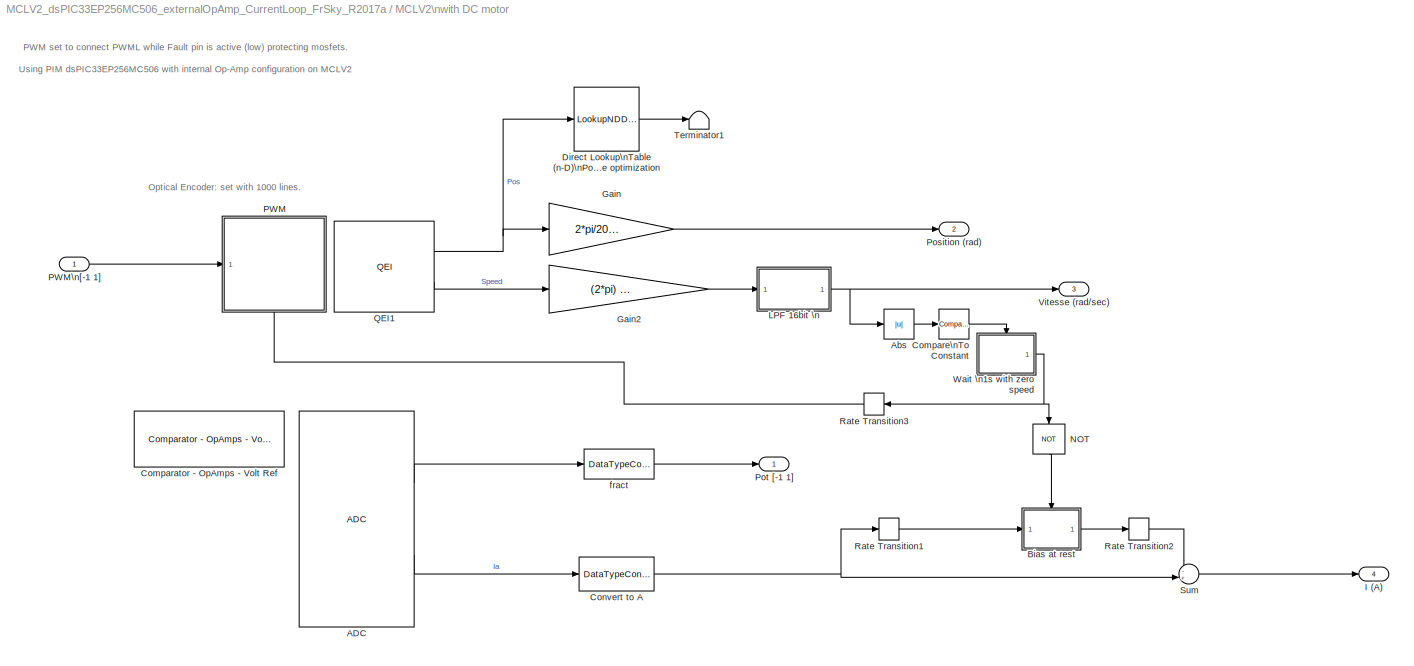
BLOCK [SubSystem] MCLV2\nwith DC motor
  Ports = [1, 4]
  RequestExecContextInheritance = off
  SID = 783
BLOCK [Reference] MCLV2\nwith DC motor/ADC  REF=MCHP_Blockset/Analog IO/ADC
  ADC_DMA_CHANNEL = Use Interrupt instead of DMA
  ADC_R = < 5    kOhm
  ADC_REF = 1
  ADC_TIMING = [2.4000000000000003149e-06]
  ADxCSS = [13]
  FORM = sddd dddd dddd 0000  ==> Signed fractional
  Info = Total Time for Sample & Conversion : 2.4e-06s including 3.4286e-07s (x 1) sample time.
  MCHP_MASTERLINK = MCLV2_dsPIC33EP256MC506_externalOpAmp_CurrentLoop_FrSky_R2017a/Microchip Master
  MCHP_PORT = {Analog Input 0}{AN0}15:2:A0;{Analog Input 13}{AN13}15:2:E13;
  MUXA_CH0N = off
  MUXA_CH123 = Dynamic Options
  MUXA_CH123_TXT = OA2 : AN1 : AN2
  MUXB_CH0 = AN1
  MUXB_CH0N = on
  MUXB_CH123 = Dynamic Options
  MUXB_CH123_TXT = OA2 : AN1 : AN2
  Mode = 10 bits (allows exact simultaneous sampling)
  Ports = [0, 2]
  Priority = 5
  SID = 785
  SIMULTANEOUS = Simultaneously on all Channels
  SSRC_SSRCG = Dynamic Options
  SSRC_SSRCG_TXT = 6
  SampleTime = 5e-05
  SequenceRepeat = 1
  SequenceTiming = are done as fast as possible ; triggered by user define source
  SourceBlock = MCHP_Blockset/Analog IO/ADC
  SourceProductName = MPLAB Device Blocks for Simulink
  Trig_TimeStep = with each update of the ADC block output
  Update_BlockOutput = After each trig and conversion sequence
  nSAMPLECHANNELS = CH0 : CH1
  nSAMPLECHANNELS_12bits = CH0 only
BLOCK [Abs] MCLV2\nwith DC motor/Abs
  SID = 786
  SaturateOnIntegerOverflow = off
BLOCK [SubSystem] MCLV2\nwith DC motor/Bias at rest
  Ports = [1, 1, 1]
  RequestExecContextInheritance = off
  SID = 787
  TreatAsAtomicUnit = on
BLOCK [EnablePort] MCLV2\nwith DC motor/Bias at rest/Enable
  Ports = []
  SID = 789
BLOCK [Inport] MCLV2\nwith DC motor/Bias at rest/In1
  IconDisplay = Port number
  SID = 788
BLOCK [SubSystem] MCLV2\nwith DC motor/Bias at rest/LPF_3Hz
  ErrorFcn = dspFilterRealizedInBasicElemsAlgLoopErrFcnCallback
  Ports = [1, 1]
  RequestExecContextInheritance = off
  SID = 790
  Tag = FilterWizardSubSystem
  UserData = DataTag1
  UserDataPersistent = on
BLOCK [DataTypeConversion] MCLV2\nwith DC motor/Bias at rest/LPF_3Hz/Cast
  RndMeth = Floor
  SID = 792
  SaturateOnIntegerOverflow = off
BLOCK [Delay] MCLV2\nwith DC motor/Bias at rest/LPF_3Hz/Delay11
  DelayLength = 1
  InitialCondition = 0
  InputPortMap = u0
  Ports = [1, 1]
  SID = 793
BLOCK [Inport] MCLV2\nwith DC motor/Bias at rest/LPF_3Hz/Input
  IconDisplay = Port number
  SID = 791
BLOCK [Outport] MCLV2\nwith DC motor/Bias at rest/LPF_3Hz/Output
  IconDisplay = Port number
  SID = 798
BLOCK [Sum] MCLV2\nwith DC motor/Bias at rest/LPF_3Hz/SumA21
  AccumDataTypeStr = Inherit: Same as first input
  IconShape = round
  InputSameDT = off
  Inputs = |+-
  Ports = [2, 1]
  RndMeth = Convergent
  SID = 794
BLOCK [Sum] MCLV2\nwith DC motor/Bias at rest/LPF_3Hz/SumB21
  AccumDataTypeStr = Inherit: Same as first input
  IconShape = round
  InputSameDT = off
  Inputs = |++
  Ports = [2, 1]
  RndMeth = Simplest
  SID = 795
BLOCK [Gain] MCLV2\nwith DC motor/Bias at rest/LPF_3Hz/a(2)(1)
  Gain = -0.962994050950215286
  ParamDataTypeStr = fixdt(1,16,14)
  RndMeth = Simplest
  SID = 796
  SaturateOnIntegerOverflow = off
BLOCK [Gain] MCLV2\nwith DC motor/Bias at rest/LPF_3Hz/s(1)
  Gain = 0.0185029745248923086
  OutDataTypeStr = fixdt(1,16,16)
  ParamDataTypeStr = fixdt(1,16,20)
  RndMeth = Convergent
  SID = 797
BLOCK [Outport] MCLV2\nwith DC motor/Bias at rest/Out1
  IconDisplay = Port number
  InitialOutput = 0
  SID = 799
BLOCK [Reference] MCLV2\nwith DC motor/Comparator - OpAmps - Volt Ref  REF=MCHP_Blockset/Analog IO/Comparator - OpAmps - Volt Ref
  MCHP_MASTERLINK = MCLV2_dsPIC33EP256MC506_externalOpAmp_CurrentLoop_FrSky_R2017a/Microchip Master
  MCHP_PORT = {Op-Amp Output 2}{OA2(out)}14:2:A0;{Op-Amp2 V+}{OA2 V+}14:2:A1;{Op-Amp2 V-}{OA2 V-}14:2:B0;
  MCHP_params = s.CVR1OE=0;s.CVR2OE=0;s.VREFSEL=0;s.RLaddle=reshape([1 1],1,2);s.AVdd=reshape({ '3.3','3.3'},1,2);s.AVss=reshape({ '0','0'},1,2);s.CVRSS=reshape([0 0],1,2);s.CON_OPMODE_CPOL=reshape([0 3 0 0 0],1,5);s.OutputPort_COE_RP=reshape({ 'B1 / Pin[16] / OA1OUT / AN3 / OA1OUT','A0 / Pin[13] / OA2OUT / AN0 / OA2OUT','C0 / Pin[21] / OA3OUT / AN6 / OA3OUT','None','None'},1,5);s.InputP_CREF=reshape([0 0 0 0 0],...<+1181ch>
  ORDERING = 0
  Ports = []
  SID = 800
  S_INPUT = [5  5]
  S_INPUT_Size = [2  2]
  S_OUTPUT = [5]
  S_OUTPUT_Size = [4]
  SampleTime = -1
  SourceBlock = MCHP_Blockset/Analog IO/Comparator - OpAmps - Volt Ref
  SourceProductName = MPLAB Device Blocks for Simulink
  SourceType = Comparator / Op amp (DS70357 & DS70648)
  UserData = DataTag2
  UserDataPersistent = on
BLOCK [Reference] MCLV2\nwith DC motor/Compare\nTo Constant  REF=simulink/Logic and Bit\nOperations/Compare\nTo Constant
  OutDataTypeStr = boolean
  Ports = [1, 1]
  SID = 801
  SourceBlock = simulink/Logic and Bit\nOperations/Compare\nTo Constant
  SourceProductBaseCode = SL
  SourceProductName = Simulink
  SourceType = Compare To Constant
  ZeroCross = on
  const = 0.5
  relop = <=
BLOCK [DataTypeConversion] MCLV2\nwith DC motor/Convert to A
  ConvertRealWorld = Stored Integer (SI)
  OutDataTypeStr = fixdt(1,16,4.4/32768,0)
  RndMeth = Floor
  SID = 802
  SaturateOnIntegerOverflow = off
BLOCK [LookupNDDirect] MCLV2\nwith DC motor/Direct Lookup\nTable (n-D)\nPossible optimization
  LockScale = on
  NumberOfTableDimensions = 1
  Ports = [1, 1]
  SID = 803
  Table = [0:(1000-1)]*2*pi/1000
  TableDataTypeStr = fixdt(1,16,5)
BLOCK [Gain] MCLV2\nwith DC motor/Gain
  Gain = 2*pi/2000
  OutDataTypeStr = fixdt(1,16,5)
  ParamDataTypeStr = Inherit: Inherit via internal rule
  SID = 804
  SaturateOnIntegerOverflow = off
BLOCK [Gain] MCLV2\nwith DC motor/Gain2
  Gain = (2*pi) / 2000 / 0.002
  LockScale = on
  OutDataTypeStr = fixdt(1,16,5)
  ParamDataTypeStr = Inherit: Inherit via internal rule
  SID = 805
  SaturateOnIntegerOverflow = off
BLOCK [Outport] MCLV2\nwith DC motor/I (A)
  IconDisplay = Port number
  Port = 4
  SID = 849
BLOCK [SubSystem] MCLV2\nwith DC motor/LPF 16bit \n
  ErrorFcn = dspFilterRealizedInBasicElemsAlgLoopErrFcnCallback
  Ports = [1, 1]
  RequestExecContextInheritance = off
  SID = 806
  Tag = FilterWizardSubSystem
  UserData = DataTag3
  UserDataPersistent = on
BLOCK [DataTypeConversion] MCLV2\nwith DC motor/LPF 16bit \n/CastState1
  OutDataTypeStr = fixdt(1,16,6)
  RndMeth = Floor
  SID = 808
  SaturateOnIntegerOverflow = off
BLOCK [DataTypeConversion] MCLV2\nwith DC motor/LPF 16bit \n/ConvertOut
  OutDataTypeStr = fixdt(1,16,4)
  RndMeth = Floor
  SID = 809
  SaturateOnIntegerOverflow = off
BLOCK [Delay] MCLV2\nwith DC motor/LPF 16bit \n/Delay11
  DelayLength = 1
  InitialCondition = 0
  InputPortMap = u0
  Ports = [1, 1]
  SID = 810
BLOCK [Delay] MCLV2\nwith DC motor/LPF 16bit \n/Delay21
  DelayLength = 1
  InitialCondition = 0
  InputPortMap = u0
  Ports = [1, 1]
  SID = 811
BLOCK [Inport] MCLV2\nwith DC motor/LPF 16bit \n/Input
  IconDisplay = Port number
  SID = 807
BLOCK [Outport] MCLV2\nwith DC motor/LPF 16bit \n/Output
  IconDisplay = Port number
  SID = 820
BLOCK [Sum] MCLV2\nwith DC motor/LPF 16bit \n/SumA21
  AccumDataTypeStr = fixdt(1,16,6)
  IconShape = round
  InputSameDT = off
  Inputs = |+-
  OutDataTypeStr = fixdt(1,16,6)
  Ports = [2, 1]
  SID = 812
  SaturateOnIntegerOverflow = off
BLOCK [Sum] MCLV2\nwith DC motor/LPF 16bit \n/SumA31
  AccumDataTypeStr = fixdt(1,16,6)
  IconShape = round
  InputSameDT = off
  Inputs = |+-
  OutDataTypeStr = fixdt(1,16,6)
  Ports = [2, 1]
  SID = 813
  SaturateOnIntegerOverflow = off
BLOCK [Sum] MCLV2\nwith DC motor/LPF 16bit \n/SumB21
  AccumDataTypeStr = fixdt(1,16,5)
  IconShape = round
  InputSameDT = off
  Inputs = |++
  OutDataTypeStr = fixdt(1,16,5)
  Ports = [2, 1]
  SID = 814
  SaturateOnIntegerOverflow = off
BLOCK [Sum] MCLV2\nwith DC motor/LPF 16bit \n/SumB31
  AccumDataTypeStr = fixdt(1,16,4)
  IconShape = round
  InputSameDT = off
  Inputs = |++
  OutDataTypeStr = fixdt(1,16,4)
  Ports = [2, 1]
  SID = 815
  SaturateOnIntegerOverflow = off
BLOCK [Gain] MCLV2\nwith DC motor/LPF 16bit \n/a(2)(1)
  Gain = -1.14298050253990113
  OutDataTypeStr = fixdt(1,16,6)
  ParamDataTypeStr = fixdt(1,16,14)
  SID = 816
  SaturateOnIntegerOverflow = off
BLOCK [Gain] MCLV2\nwith DC motor/LPF 16bit \n/a(3)(1)
  Gain = 0.412801598096188771
  OutDataTypeStr = fixdt(1,16,8)
  ParamDataTypeStr = fixdt(0,16,17)
  SID = 817
  SaturateOnIntegerOverflow = off
BLOCK [Gain] MCLV2\nwith DC motor/LPF 16bit \n/b(2)(1)
  Gain = 2
  OutDataTypeStr = fixdt(1,16,5)
  ParamDataTypeStr = fixdt(0,16,14)
  SID = 818
  SaturateOnIntegerOverflow = off
BLOCK [Gain] MCLV2\nwith DC motor/LPF 16bit \n/s(1)
  Gain = 0.0674552738890718956
  OutDataTypeStr = fixdt(1,16,8)
  ParamDataTypeStr = fixdt(0,16,19)
  SID = 819
  SaturateOnIntegerOverflow = off
BLOCK [Logic] MCLV2\nwith DC motor/NOT
  AllPortsSameDT = off
  IconShape = distinctive
  Operator = NOT
  OutDataTypeStr = boolean
  Ports = [1, 1]
  SID = 821
BLOCK [SubSystem] MCLV2\nwith DC motor/PWM
  Ports = [1, 0, 1]
  RequestExecContextInheritance = off
  SID = 822
BLOCK [Bias] MCLV2\nwith DC motor/PWM/Bias
  Bias = PWMmax/2
  SID = 825
  SaturateOnIntegerOverflow = off
BLOCK [DataTypeConversion] MCLV2\nwith DC motor/PWM/Cast
  OutDataTypeStr = uint16
  RndMeth = Floor
  SID = 826
  SaturateOnIntegerOverflow = off
BLOCK [Constant] MCLV2\nwith DC motor/PWM/Constant
  OutDataTypeStr = uint16
  SID = 827
  Value = PWMmax
BLOCK [EnablePort] MCLV2\nwith DC motor/PWM/Enable
  Ports = []
  SID = 824
BLOCK [Gain] MCLV2\nwith DC motor/PWM/Gain
  Gain = PWMmax/2
  OutDataTypeStr = fixdt(1,32,1)
  ParamDataTypeStr = Inherit: Inherit via internal rule
  SID = 828
  SaturateOnIntegerOverflow = off
BLOCK [Reference] MCLV2\nwith DC motor/PWM/PWM High Speed  REF=MCHP_Blockset/PWM IO/PWM High Speed
  ADC_VARTRIG = {PWM Primary Special Event Trigger;6}
  ChkCurBlkOut = [0  0  0  0  0  0  0  0]
  ChkCurBlkOutTime = [0  0  1  0  0  0  0  0]
  InitDC = { '50','50','50','50','50','50','50','50';'0.001','0.001','0.001','50','50','50','50','50'}
  InitP2 = { '50e-6','.001','0.001','0.001','0.001','0.001','0.001','0.001';'0.001','0.001','0.001','0.001','0.001','0.001','0.001','0.001'}
  InitPh = { '0','0','0','0.001','0.001','0.001','0.001','0.001';'0','0','0','0.001','0.001','0.001','0.001','0.001'}
  MCHP_MASTERLINK = MCLV2_dsPIC33EP256MC506_externalOpAmp_CurrentLoop_FrSky/Microchip Master
  MCHP_PORT = {PWM1 Fault}{FLT32}4:0:B4;{PWM2 Fault}{FLT32}4:0:B4;{PWM1H}{PWM1H}4:4:B14;{PWM1L}{PWM1L}4:4:B15;{PWM2H}{PWM2H}4:4:B12;{PWM2L}{PWM2L}4:4:B13;
  MCHP_VERSION = v3.39
  ORDERING = None
  Ports = [2]
  SID = 829
  S_DWORK_Size = []
  S_DWORK_Type = []
  S_INPUT = [5  5  5]
  S_INPUT_Size = [1  1  1]
  S_OUTPUT = []
  S_OUTPUT_Size = []
  SampleTime = -1
  SourceBlock = MCHP_Blockset/PWM IO/PWM High Speed
  SourceProductName = MPLAB Device Blocks for Simulink
  UserData = DataTag4
  UserDataPersistent = on
  chk1 = [1  1  1  0  0]
  chkDC = [1  1  1  1  1  1  1  1 ; 0  0  0  1  1  1  1  1]
  chkFltBlkOut = [0  0  0  0  0  0  0  0]
  chkHL1 = [1  1  0  1  1  1  1  1 ; 1  1  0  1  1  1  1  1]
  chkP2 = [0  1  0  1  1  1  1  1 ; 1  0  0  1  1  1  1  1]
  chkPh = [0  0  0  1  1  1  1  1 ; 0  0  0  1  1  1  1  1]
  chkSEvTrigx = [0  1  1  1  1  1  1  1]
  edAltDTRx = { '0.5e-6','0.5e-6','0.5e-6','1e-05','1e-05','1e-05','1e-05','1e-05'}
  edDTRx = { '0.02','1e-05','0.001','1e-05','1e-05','1e-05','1e-05','1e-05'}
  edLEB = { '100e-9','50e-9','150e-9','50e-9','50e-9','50e-9','50e-9','50e-9'}
  edSEvTrigx = { '120e-9','-1','-1','-1','-1','-1','-1','-1'}
  maxP1 = { '50e-6','0.001','0.001','0.001','0.001','0.001','0.001','0.001';'0.001','0.001','1e-06','0.001','0.001','0.001','0.001','0.001'}
  pop1 = [1]
  popBLANKSEL = [1  1  1  1  1  1  1  1]
  popBPHHBPHL = [1  1  1  1  1  1  1  1]
  popBPLHBPLL = [1  1  1  1  1  1  1  1]
  popCurActiveH = [1  1  1  1  1  1  1  1]
  popCurEnabled = [1  1  1  1  1  1  1  1]
  popCurForceH = [2  1  2  1  1  1  1  1]
  popCurForceL = [2  1  2  1  1  1  1  1]
  popCurPin = [4  31   4   4   4   4   4   4]
  popDT = [1  1  1  3  3  3  3  3]
  popFLTLEBEN_CLLEBEN = [1  1  1  1  1  1  1  1]
  popFlt = [2  2  1  1  1  1  1  1]
  popFltActivH = [2  2  1  1  1  1  1  1]
  popFltForceH = [2  2  2  2  2  2  2  2]
  popFltForceL = [1  1  1  1  1  1  1  1]
  popFltPin = [20  20  20   4   4   4   4   4]
  popFltPinRp = [1  1  1  1  1  1  1]
  popIndepFaultMode = [1  1  1  1  1  1  1  1]
  popPHR_PHF = [2  1  1  1  1  1  1  1]
  popPLR_PLF = [3  1  1  1  1  1  1  1]
BLOCK [Saturate] MCLV2\nwith DC motor/PWM/Saturation
  InputPortMap = u0
  LowerLimit = round( (0.5e-6/50e-6) *PWMmax )
  Ports = [1, 1]
  SID = 830
  UpperLimit = PWMmax - (1e-6/50e-6)*PWMmax
BLOCK [Saturate] MCLV2\nwith DC motor/PWM/Saturation1
  InputPortMap = u0
  LowerLimit = round( (0.5e-6/50e-6) *PWMmax )
  Ports = [1, 1]
  SID = 831
  UpperLimit = PWMmax
BLOCK [Sum] MCLV2\nwith DC motor/PWM/Sum
  AccumDataTypeStr = Inherit: Same as first input
  InputSameDT = off
  Inputs = +-
  Ports = [2, 1]
  SID = 832
  SaturateOnIntegerOverflow = off
BLOCK [Inport] MCLV2\nwith DC motor/PWM/Vdc\n[-1 1]
  IconDisplay = Port number
  SID = 823
BLOCK [Inport] MCLV2\nwith DC motor/PWM\n[-1 1]
  IconDisplay = Port number
  SID = 784
BLOCK [Outport] MCLV2\nwith DC motor/Position (rad)
  IconDisplay = Port number
  Port = 2
  SID = 847
BLOCK [Outport] MCLV2\nwith DC motor/Pot [-1 1]
  IconDisplay = Port number
  SID = 846
BLOCK [Reference] MCLV2\nwith DC motor/QEI1  REF=MCHP_Blockset/QEI/QEI
  FILTER_CutOffFreq = 100e3
  FILTREN = on
  HOMPOL = on
  IDXPOL = off
  IMV = QEA = 1 and QEB = 0
  IMV_x2 = QEA = 1
  INDXxCNT_Output = is not an output
  INTxHLD_Output = is not an output
  MCHP_MASTERLINK = MCLV2_dsPIC33EP256MC506_externalOpAmp_CurrentLoop_FrSky_R2017a/Microchip Master
  MCHP_PORT = {QEI1 A}{QEA1}5:0:P24;{QEI1 B}{QEB1}5:0:P54;
  MaxPeriod = 1e-3
  PCIIRQ = off
  PIMOD_mode = position is cyclique between user defined boundaries
  PIMOD_modeB = Never reset position
  PIMOD_reset = on next INDEX event
  PIN_CCMP = Dynamic Options
  PIN_CCMP_TXT = A4 / P20 / Pin[33]
  PIN_HOME = Dynamic Options
  PIN_HOME_TXT = A4 / P20 / Pin[33]
  PIN_INDEX = Dynamic Options
  PIN_INDEX_TXT = A4 / P20 / Pin[33]
  PIN_QEA = Dynamic Options
  PIN_QEA_TXT = A8 / P24 / Pin[31]
  PIN_QEB = Dynamic Options
  PIN_QEB_TXT = C6 / P54 / Pin[50]
  POSxCNT_Output = is a 16 bits unsigned block output
  Ports = [0, 2]
  QEAPOL = off
  QEBPOL = off
  QEI_IntPri = 5
  QEI_MODE = Quadrature Encoder
  QEI_PulseCountDir = Down
  QEI_REF = 1
  QEI_x2mode = off
  QEIxIC = 0
  QEIxLEC_GEC = [0 1999]
  QFDIV_popup = Dynamic Options
  QFDIV_popup_TXT = 729.17 kHz
  RESET_Input = off
  SID = 833
  SWPAB = off
  SampleTime = .002
  SourceBlock = MCHP_Blockset/QEI/QEI
  SourceProductName = MPLAB Device Blocks for Simulink
  SourceType = Output Driver for Quadrature Encoder Interface (QEI) peripheral
  UserData = DataTag5
  UserDataPersistent = on
  VELxCNT_Output = is a 16 bits signed block output
BLOCK [RateTransition] MCLV2\nwith DC motor/Rate Transition1
  Deterministic = off
  OutPortSampleTime = .002
  SID = 834
BLOCK [RateTransition] MCLV2\nwith DC motor/Rate Transition2
  Deterministic = off
  SID = 835
BLOCK [RateTransition] MCLV2\nwith DC motor/Rate Transition3
  Deterministic = off
  SID = 836
BLOCK [Sum] MCLV2\nwith DC motor/Sum
  IconShape = round
  Inputs = -+|
  OutDataTypeStr = Inherit: Inherit via back propagation
  Ports = [2, 1]
  SID = 837
BLOCK [Terminator] MCLV2\nwith DC motor/Terminator1
  SID = 838
BLOCK [Outport] MCLV2\nwith DC motor/Vitesse (rad//sec)
  IconDisplay = Port number
  Port = 3
  SID = 848
BLOCK [SubSystem] MCLV2\nwith DC motor/Wait \n1s with zero speed
  Ports = [0, 1, 1]
  RequestExecContextInheritance = off
  SID = 839
  TreatAsAtomicUnit = on
BLOCK [Reference] MCLV2\nwith DC motor/Wait \n1s with zero speed/1s\n  REF=simulink/Logic and Bit\nOperations/Compare\nTo Constant
  OutDataTypeStr = boolean
  Ports = [1, 1]
  SID = 841
  SourceBlock = simulink/Logic and Bit\nOperations/Compare\nTo Constant
  SourceProductBaseCode = SL
  SourceProductName = Simulink
  SourceType = Compare To Constant
  ZeroCross = on
  const = 500
  relop = >=
BLOCK [Constant] MCLV2\nwith DC motor/Wait \n1s with zero speed/Constant
  OutDataTypeStr = Inherit: Inherit via back propagation
  SID = 842
BLOCK [DiscreteIntegrator] MCLV2\nwith DC motor/Wait \n1s with zero speed/Discrete-Time\nIntegrator
  ICPrevOutput = DiscIntNeverNeededParam
  ICPrevScaledInput = DiscIntNeverNeededParam
  InitialConditionSetting = State (most efficient)
  IntegratorMethod = Accumulation: Forward Euler
  OutDataTypeStr = uint16
  Ports = [1, 1]
  SID = 843
  SampleTime = -1
  SaturateOnIntegerOverflow = on
  gainval = 1
BLOCK [EnablePort] MCLV2\nwith DC motor/Wait \n1s with zero speed/Enable
  Ports = []
  SID = 840
BLOCK [Outport] MCLV2\nwith DC motor/Wait \n1s with zero speed/Go
  IconDisplay = Port number
  InitialOutput = 0
  SID = 844
BLOCK [DataTypeConversion] MCLV2\nwith DC motor/fract
  ConvertRealWorld = Stored Integer (SI)
  OutDataTypeStr = fixdt(1,16,15)
  RndMeth = Floor
  SID = 845
  SaturateOnIntegerOverflow = off
BLOCK [Reference] MCU Load  REF=MCHP_Blockset/Profiling/MCU Load
  Info = Timer 1:  Resol: 114.2857143(ns)  -  Max: 7.48983(ms)
  MCHP_COMPILED_INFO = CompiledSampleTime= [0.0020000000000000000416   0 ];CompiledInportDataTypes=[ ];CompiledInportDataWidth=[];
  MCHP_MASTERLINK = MCLV2_dsPIC33EP256MC506_externalOpAmp_CurrentLoop_FrSky_R2017a/Microchip Master
  MCHP_PORT = {MCU Load Pin}{MCU_Load}0:1:C10;
  MCHP_TIMER_REQUEST = {MCU_Load}{MCU_Load}21:5:0:0:[]:524288;
  MCHP_TIMER_RESULT = [1 65535 ]
  MCULoadMeasure = on
  MCULoadPin = Dynamic Options
  MCULoadPin_TXT = C10 / Pin[45]
  Ports = [0, 1]
  SID = 1015
  SampleTime = .002
  SourceBlock = MCHP_Blockset/Profiling/MCU Load
  SourceProductName = MPLAB Device Blocks for Simulink
  SourceType = MCU Load (Profile execution time)
  TIMER_Resolution = Dynamic Options
  TIMER_Resolution_TXT = Resol: 0.1143(us)  -  Max: 7.49(ms)
BLOCK [Merge] Merge
  Inputs = 4
  Ports = [4, 1]
  SID = 456
BLOCK [Reference] Microchip Master  REF=MCHP_Blockset/System Configuration/Microchip Master
  ACLKCON = Optimized for PWM resolution & ADC conversion speed
  ACTIV_PLL = on
  ACTIV_PLL_spd = on
  AIVTDIS = Disable Alternate Vector Table
  ALTADREF = Not used
  ALTCMPI = Not used
  ALTCVREF = Not used
  ALTI2C = I2C mapped to SDA1/SCL1 pins
  ALTI2C1 = I2C1 mapped to SDA1/SCL1 pins
  ALTI2C2 = I2C2 mapped to SDA2/SCL2 pins
  ALTPMP = Not used
  ALTQIO = QEA1; QEB1; INDX1 are selected as inputs to QEI1
  ALTRB6 = Not used
  ALTSS1 = SS1A is selected as the I/O pin for SPI1
  ALTVREF = Not used
  APL = Aux Flash Code protect is disabled
  APLK = Aux Flash Write Protection or Code Protection is Enabled
  ATMOD8 = Not used
  AWRP = Auxiliary program memory is not write-protected
  BACKBUG = Not used
  BKBUG = Not used
  BODENV = 2.7V
  BOOTISA = Boot code and Exception code is MIPS32
  BOREN = Disable
  BOREN0 = Enabled
  BOREN1 = Not used
  BORV = Not used
  BSEN = No Boot Segment
  BSLIM = Not used
  BSS = No Boot program Flash segment
  BSS2 = No Boot Segment
  BTMODE = Not used
  BTSWP = BOOTSWP instruction is disabled
  BUSYFLAG = Dynamic Options
  BUSYFLAG_TXT = None
  BWP = Not used
  BWRP = Boot Segment may be written
  CMPPOL0 = Hysteresis is applied to falling edge
  CMPPOL1 = Hysteresis is applied to falling edge
  COE = Not used
  CP = Protection Disabled
  CSEQ = Not used
  CSS = No Protection (other than CWRP)
  CTXT1 = Not Assigned
  CTXT2 = Not Assigned
  CWRP = Configuration Segment may be written
  DBCC = No Cross Connection between DAC outputs
  DBGPER = Allow CPU access to all permission regions
  DEBUG = Debugger is disabled
  DFMCY = Not used
  DISUVREG = Not used
  DMTCNT = 2^8 (256)
  DMTEN = Dead Man Timer is Disabled and can be enabled by software
  DMTINTV = Window/Interval value is 127/128 counter value
  DMTIVT = Not used
  DSBOREN = Enable ZPBOR during Deep Sleep Mode
  DSLPBOR = Not used
  DSSWEN = Not used
  DSWDTEN = Enable DSWDT during Deep Sleep Mode
  DSWDTOSC = Select LPRC as DSWDT Reference clock
  DSWDTPS = 1:2^36
  EBS = No Boot EEPROM
  EJTAGBEN = Normal EJTAG functionality
  ESS = No Segment Data EEPROM
  EXTDDRSIZE = Not used
  FCANIO = Not used
  FCKSM = Clock switching is enabled;Fail-safe Clock Monitor is disabled
  FCKSMEN = Sw Disabled; Mon Disabled
  FDMTEN = Deadman Timer is disabled
  FECCCON = ECC and Dynamic ECC are disabled (ECCCON bits are writable)
  FETHIO = Default Ethernet I/O
  FMIIEN = MII Enabled
  FNOSC = Primary Oscillator (XT; HS; EC)
  FOS = Primary Oscillator
  FOSFPR = HS3 w/PLL 16x
  FPBDIV = Not used
  FPLLICLK = FRC is input to the System PLL
  FPLLIDIV = 8x Divider
  FPLLMUL = Not used
  FPLLMULT = PLL Multiply by 128
  FPLLODIV = 32x Divider
  FPLLRNG = 34-68 MHz Input
  FPR = ECIO w/ PLL 16x
  FPWRT = 128ms
  FRANGE = High Range
  FSLEEP = Flash is powered down when the device is in Sleep mode
  FSOSCEN = Enable SOSC
  FSRSSEL = Not used
  FUSBIDIO = Controlled by the USB Module
  FVBUSONIO = Not used
  FWDTEN = Disable
  FWDTWINSZ = Window size is 25%
  FWPSA = 1:512
  FWPSA0 = 1:128
  FWPSB = 1:16
  GCP = General Segment Code protect is Disabled
  GSS = General Segment Code protect is Disabled
  GSS0 = Not used
  GSSK = General Segment Write Protection or Code Protection is Enabled
  GWRP = General Segment may be written
  HPOL = PWM module high side output pins have active-high output polarity
  HYST0 = 45 mV Hysteresis
  HYST1 = 45 mV Hysteresis
  I2C1SEL = Not used
  I2C2SEL = Not used
  ICESEL = Communicate on PGEC1/PGED1
  ICS = Communicate on PGEC2 and PGED2
  IESO = Start up with FRC; then switch
  IOL1WAY = Allow only one reconfiguration
  JTAGEN = Disable
  LPCFG = Not used
  LPOL = PWM module low side output pins have active-high output polarity
  LPRCSEL = Not used
  LVRCFG = Not used
  MCHPVAR = MCHP.fcy.MIPS=70000000;MCHP.fcy.SYSCLK=70000000;MCHP.fcy.ADC=70000000;MCHP.fcy.Comparator=70000000;MCHP.fcy.I2C=70000000;MCHP.fcy.SPI=70000000;MCHP.fcy.UART=70000000;MCHP.fcy.Timers=70000000;MCHP.fcy.OC=70000000;MCHP.fcy.IC=70000000;MCHP.fcy.Ports=70000000;MCHP.fcy.QEI=70000000;MCHP.PowerSave=0;MCHP.TimeStepFactor=-20000;MCHP.TimeStep_Timer=-1;MCHP.NTIMERS=5;MCHP.id.name='33EP256MC506';MCHP.id.N=r...<+12117ch>
  MCHP_CRC = 5751430
  MCHP_PLLRegisters = [5    243  16385     -1]
  MCHP_TIMER_RESULT = [ ]
  MCLRE = Enabled
  MIPS = 70 * 1e6
  MIPS_DESIRED = 70e6
  MIPS_DESIRED_spd = 70e6
  ON = Not used
  OSCILLATOR_SELECT = Crystal / Ceramic resonator
  OSCILLATOR_SELECT_spd = Crystal / Ceramic resonator
  OSCIOFCN = Not used
  OSCIOFNC = general purpose digital I/O pin
  PGL1WAY = Allow only one reconfiguration
  PICREF = 33EP256MC506
  PLL96MHZ = Not used
  PLLDIV = Not used
  PLLKEN = Clock switch to PLL source will wait until the PLL lock signal is valid.
  PLLSS = Not used
  PLL_96MHZ = Not used
  PMDL1WAY = Allow only one reconfiguration
  POSCBOOST = Boost the kick start of the oscillator
  POSCFREQ = Not used
  POSCGAIN = 2x gain setting
  POSCMD = XT Crystal Oscillator Mode
  POSCMOD = Primary osc disabled
  POWERSAVE = off
  PWMLOCK = PWM registers may be written without key sequence
  PWMPIN = PWM module pins controlled by PORT register at device Reset
  PWP = Not used
  PWRTEN = Not used
  Ports = []
  Priority = 1
  QUARTZ = 8e6
  QUARTZ_spd = 8e6
  RBS = No Boot RAM
  RES = Not used
  RES1 = Not used
  RES2 = Not used
  RESERVED1 = Not used
  RETCFG = Not used
  RSS = No Secure RAM
  RSTPRI = Device will obtain reset instruction from Primary flash
  RTCBAT = Not used
  RTCOSC = Not used
  SEQNUM = Not used
  SID = 780
  SMCLR = MCLR pin generates a normal system Reset
  SOSCBOOST = Boost the kick start of the oscillator
  SOSCGAIN = 2x gain setting
  SOSCSEL = Not used
  SOSCSRC = Not used
  SSS = No Secure Segment
  SWRP = Secure segment may be written
  SourceBlock = MCHP_Blockset/System Configuration/Microchip Master
  SourceProductName = MPLAB Device Blocks for Simulink
  TEMP = Not used
  TIMESTEP_REF = ADC
  TRCEN = Trace features in the CPU are enabled
  TSEQ = Not used
  UPLLEN = USB PLL Disabled
  UPLLFSEL = USB PLL input is 24 MHz
  UPLLIDIV = Not used
  USERID = Not used
  VBTBOR = Not used
  WDT = Disable
  WDTCLK = Not used
  WDTCMX = Not used
  WDTEN = Disable
  WDTPOST = 1:32768
  WDTPRE = 1:128
  WDTPS = 1:1048576
  WDTSPGM = WDT stops during Flash programming
  WDTWIN = WDT Window is 25% of WDT period
  WINDIS = Watchdog Timer in Non-Window mode
  WPCFG = Not used
  WPDIS = Not used
  WPEND = Not used
  WPFP = Not used
  WUTSEL = Not used
  WWDTEN = Non-Window mode
  nSEQNUM = Not used
BLOCK [Reference] Model Info  REF=simulink/Model-Wide\nUtilities/Model Info
  DisplayStringWithTags = %<ModelName> v%<ModelVersion> - %<Creator>\n\n%<Description>\n\nLost modified on: %<LastModificationDate>
  Frame = on
  HorizontalTextAlignment = Center
  LeftAlignmentValue = 0.5
  MaskDisplayString = MCLV2_dsPIC33EP256MC506_externalOpAmp_CurrentLoop_FrSky_R2017a v1.69 - R.Delpoux & L.Kerhuel\\n\\nMCLV V2 board connected to DC motor through PWM [1 2]\\nPIM 33EP256MC506 with internal Op-Amp (populated with resistances)\\n\\nLED D2 blink at 5Hz. LED D1 is the CPU busy flag\\n\\nLost modified on: Thu Dec 13 14:25:05 2018
  Ports = []
  SID = 341
  SourceBlock = simulink/Model-Wide\nUtilities/Model Info
  SourceProductBaseCode = SL
  SourceProductName = Simulink
  SourceType = CMBlock
BLOCK [Logic] NOT
  AllPortsSameDT = off
  IconShape = distinctive
  Operator = NOT
  OutDataTypeStr = boolean
  Ports = [1, 1]
  SID = 776
BLOCK [Reference] Port Info  REF=MCHP_Blockset/System Info/Port Info
  MCHP_MASTERLINK = MCLV2_dsPIC33EP256MC506_externalOpAmp_CurrentLoop_FrSky_R2017a/Microchip Master
  Ports = []
  SID = 203
  SourceBlock = MCHP_Blockset/System Info/Port Info
  SourceProductName = MPLAB® Device Blocks for Simulink®
BLOCK [RateTransition] Rate Transition
  Deterministic = off
  SID = 1019
BLOCK [Reference] Reset  REF=MCHP_Blockset/System Functions/Reset
  MCHP_MASTERLINK = UTestBoard_33FJ256GP710A_2/Microchip Master
  Ports = [1]
  SID = 777
  SampleTime = -1
  SourceBlock = MCHP_Blockset/System Functions/Reset
  SourceProductName = MPLAB Device Blocks for Simulink
  SourceType = UART Reset
BLOCK [Reference] S1  REF=MCHP_Blockset/Digital IO/Digital Input
  MCHP_MASTERLINK = MCLV2_dsPIC33EP256MC506_externalOpAmp_CurrentLoop_FrSky_R2017a/Microchip Master
  MCHP_PORT = {Digital In}{DIN}2:0:G6;
  ORDERING = None
  PACK = off
  PIN = 6
  PORT = Dynamic Options
  PORT_TXT = G   [ 6 : 9 ]
  Ports = [0, 1]
  SID = 778
  SIMULTANEOUS = off
  SampleTime = .1
  SourceBlock = MCHP_Blockset/Digital IO/Digital Input
  SourceProductName = MPLAB Device Blocks for Simulink
  SourceType = Input driver for Digital Input Pins
BLOCK [Reference] S2  REF=MCHP_Blockset/Digital IO/Digital Input
  MCHP_MASTERLINK = MCLV2_dsPIC33EP256MC506_externalOpAmp_CurrentLoop_FrSky_R2017a/Microchip Master
  MCHP_PORT = {Digital In}{DIN}2:0:G7;
  ORDERING = None
  PACK = off
  PIN = 7
  PORT = Dynamic Options
  PORT_TXT = G   [ 6 : 9 ]
  Ports = [0, 1]
  SID = 333
  SIMULTANEOUS = off
  SampleTime = -1
  SourceBlock = MCHP_Blockset/Digital IO/Digital Input
  SourceProductName = MPLAB Device Blocks for Simulink
  SourceType = Input driver for Digital Input Pins
BLOCK [Reference] Sensor for\nSmart.Port or F.Port  REF=UxV_Blockset/RECEIVER/Sensor for\nSmart.Port or F.Port
  APPID = 0x0500  (1280)
  APPID_Offset_popup = 0
  APPID_popup = RPM [16]  - 0x0500
  PRIM = 0x10 DATA (Master/Slave)
  PhyID_popup = 5 - 0xE4  [RPM]
  Ports = [1]
  SID = 1016
  SampleTime = .3
  SourceBlock = UxV_Blockset/RECEIVER/Sensor for\nSmart.Port or F.Port
  SourceProductName = UxV_Blocks
  SourceType = Sensor for Smart Port or F.Port
  Unit = RPMS
  UserData = DataTag6
  UserDataPersistent = on
BLOCK [Reference] Sensor for\nSmart.Port or F.Port1  REF=UxV_Blockset/RECEIVER/Sensor for\nSmart.Port or F.Port
  APPID = 0x0900  (2304)
  APPID_Offset_popup = 0
  APPID_popup = A3 [16]  - 0x0900
  PRIM = 0x10 DATA (Master/Slave)
  PhyID_popup = 17 - 0xD0
  Ports = [1]
  SID = 1017
  SampleTime = .3
  SourceBlock = UxV_Blockset/RECEIVER/Sensor for\nSmart.Port or F.Port
  SourceProductName = UxV_Blocks
  SourceType = Sensor for Smart Port or F.Port
  Unit = RAW
  UserData = DataTag7
  UserDataPersistent = on
BLOCK [Reference] Sensor for\nSmart.Port or F.Port2  REF=UxV_Blockset/RECEIVER/Sensor for\nSmart.Port or F.Port
  APPID = 0x0200  (512)
  APPID_Offset_popup = 0
  APPID_popup = CURR [16]  - 0x0200
  PRIM = 0x10 DATA (Master/Slave)
  PhyID_popup = 17 - 0xD0
  Ports = [1]
  SID = 1018
  SampleTime = .3
  SourceBlock = UxV_Blockset/RECEIVER/Sensor for\nSmart.Port or F.Port
  SourceProductName = UxV_Blocks
  SourceType = Sensor for Smart Port or F.Port
  Unit = RAW
  UserData = DataTag8
  UserDataPersistent = on
BLOCK [SubSystem] Steps Large
  Ports = [0, 1, 1]
  RequestExecContextInheritance = off
  SID = 500
BLOCK [Constant] Steps Large/Constant
  OutDataTypeStr = Inherit: Inherit via back propagation
  SID = 966
  Value = 0
BLOCK [Reference] Steps Large/Counter\nLimited  REF=simulink/Sources/Counter\nLimited
  Ports = [0, 1]
  SID = 957
  SourceBlock = simulink/Sources/Counter\nLimited
  SourceProductBaseCode = SL
  SourceProductName = Simulink
  SourceType = Counter Limited
  tsamp = .1
  uplimit = 9
BLOCK [LookupNDDirect] Steps Large/Direct Lookup\nTable (n-D)1
  NumberOfTableDimensions = 1
  Ports = [1, 1]
  SID = 954
  Table = [1 0 1 0 1 0 0 0 0 0]
  TableDataTypeStr = boolean
BLOCK [EnablePort] Steps Large/Enable
  Ports = []
  SID = 501
  StatesWhenEnabling = reset
BLOCK [Reference] Steps Large/LED_D1\n5Hz Blinking  REF=MCHP_Blockset/Digital IO/Digital Output
  MCHP_MASTERLINK = MCLV2_dsPIC33EP256MC506_externalOpAmp_CurrentLoop_FrSky_R2017a/Microchip Master
  ORDERING = None
  PACK = off
  PIN = 6
  PORT = Dynamic Options
  PORT_TXT = D   [ 5  6  8 ]
  Ports = [1]
  READPREVIOUS = off
  SID = 955
  SIMULTANEOUS = off
  SampleTime = -1
  SourceBlock = MCHP_Blockset/Digital IO/Digital Output
  SourceProductName = MPLAB Device Blocks for Simulink
BLOCK [Outport] Steps Large/Out1
  IconDisplay = Port number
  SID = 506
BLOCK [Terminator] Terminator
  SID = 973
BLOCK [SubSystem] Timing Analysis
  Commented = on
  Ports = []
  RequestExecContextInheritance = off
  SID = 771
BLOCK [Reference] Timing Analysis/MCU Load  REF=MCHP_Blockset/Profiling/MCU Load
  Info = Timer 1:  Resol: 114.2857143(ns)  -  Max: 7.48983(ms)
  MCHP_COMPILED_INFO = CompiledSampleTime= [Inf Inf ];CompiledInportDataTypes=[ ];CompiledInportDataWidth=[];
  MCHP_MASTERLINK = MCLV2_dsPIC33EP256MC506_externalOpAmp_CurrentLoop_FrSky_R2017a/Microchip Master
  MCHP_PORT = {MCU Load Pin}{MCU_Load}0:1:C10;
  MCHP_TIMER_REQUEST = {MCU_Load}{MCU_Load}21:5:0:0:[]:524288;
  MCHP_TIMER_RESULT = [1 65535 ]
  MCULoadMeasure = off
  MCULoadPin = Dynamic Options
  MCULoadPin_TXT = C10 / Pin[45]
  Ports = []
  SID = 772
  SampleTime = -1
  SourceBlock = MCHP_Blockset/Profiling/MCU Load
  SourceProductName = MPLAB Device Blocks for Simulink
  SourceType = MCU Load (Profile execution time)
  TIMER_Resolution = Dynamic Options
  TIMER_Resolution_TXT = Resol: 0.1143(us)  -  Max: 7.49(ms)
BLOCK [Reference] Timing Analysis/MCU Overload  REF=MCHP_Blockset/Profiling/MCU Overload
  MCHP_MASTERLINK = MCLV2_dsPIC33EP256MC506_externalOpAmp_CurrentLoop_FrSky_R2017a/Microchip Master
  MCHP_PORT = {OverLoad Pin}{OverLoad}0:1:D5;
  MCUOverLoadPin = Dynamic Options
  MCUOverLoadPin_TXT = D5 / Pin[53]
  MCUOverloadBlockOutput = off
  Ports = []
  SID = 773
  SampleTime = .1
  SourceBlock = MCHP_Blockset/Profiling/MCU Overload
  SourceProductName = MPLAB Device Blocks for Simulink
  SourceType = MCU Over-Load (Profile execution time)
BLOCK [Reference] Timing Analysis/Tasks State  REF=MCHP_Blockset/Profiling/Tasks State
  MCHP_MASTERLINK = MCLV2_dsPIC33EP256MC506_externalOpAmp_CurrentLoop_FrSky_R2017a/Microchip Master
  MCHP_PORT = {Task D1 Running}{Task D1}15:1:B5;{Task D2 Running}{Task D2}15:1:B6;{Task D3 Running}{Task D3}15:1:F0;
  Ports = []
  SID = 774
  SourceBlock = MCHP_Blockset/Profiling/Tasks State
  SourceProductName = MPLAB Device Blocks for Simulink
  SourceType = MCU Over-Load (Profile execution time)
  TasksPin = [B5 B6 F0]
BLOCK [SubSystem] Toggle (4 states)
  Ports = [1, 1]
  RequestExecContextInheritance = off
  SID = 438
BLOCK [Reference] Toggle (4 states)/Bitwise Operator  REF=simulink/Logic and Bit\nOperations/Bitwise\nOperator
  BitMask = 7
  BitMaskRealWorld = Stored Integer
  NumInputPorts = 1
  Ports = [1, 1]
  SID = 440
  SourceBlock = simulink/Logic and Bit\nOperations/Bitwise\nOperator
  SourceProductBaseCode = SL
  SourceProductName = Simulink
  SourceType = Bitwise Operator
  UseBitMask = on
  logicop = AND
BLOCK [Delay] Toggle (4 states)/Delay
  DelayLength = 1
  InitialCondition = 0
  InputPortMap = u0
  Ports = [1, 1]
  SID = 441
BLOCK [Reference] Toggle (4 states)/Detect Increase  REF=simulink/Logic and Bit\nOperations/Detect\nIncrease
  InputProcessing = Elements as channels (sample based)
  OutDataTypeStr = boolean
  Ports = [1, 1]
  SID = 442
  SourceBlock = simulink/Logic and Bit\nOperations/Detect\nIncrease
  SourceProductBaseCode = SL
  SourceProductName = Simulink
  SourceType = Detect Increase
  vinit = 1
BLOCK [Inport] Toggle (4 states)/In1
  IconDisplay = Port number
  SID = 439
BLOCK [Outport] Toggle (4 states)/Out1
  IconDisplay = Port number
  SID = 444
BLOCK [Sum] Toggle (4 states)/Sum
  AccumDataTypeStr = uint16
  InputSameDT = off
  OutDataTypeStr = uint16
  Ports = [2, 1]
  SID = 443
  SaturateOnIntegerOverflow = off
BLOCK [Reference] UART Configuration1  REF=MCHP_Blockset/BUS UART/UART Configuration
  ALT_IO = on
  BAUD_Choice = Dynamic Options
  BAUD_Choice_IR = Dynamic Options
  BAUD_Choice_IR_InitSeq = Dynamic Options
  BAUD_Choice_IR_InitSeq_TXT = 0
  BAUD_Choice_IR_TXT = []
  BAUD_Choice_InitSeq = Dynamic Options
  BAUD_Choice_InitSeq_TXT = 115200         [-0.06%]
  BAUD_Choice_TXT = 2000000         [-2.78%]
  BAUD_Custom = 115200
  BAUD_Custom_InitSeq = 0
  DuplexMode = Full duplex (default)
  FlowControl = None
  IRDA = off
  InitSequence = ['Init done' 10 13]
  InitSequence_chkbox = off
  MCHP_COM_ExtPil = off
  MCHP_MASTERLINK = MCLV2_dsPIC33EP256MC506_externalOpAmp_CurrentLoop_FrSky_R2017a/Microchip Master
  MCHP_PORT = {UART1  Rx}{U1RX}3:0:P53;{UART1  Tx}{U1TX}3:1:P97;
  PIN_CTS = Dynamic Options
  PIN_CTS_TXT = A4 / P20 / Pin[33]
  PIN_RTS = Dynamic Options
  PIN_RTS_TXT = A4 / P20 / Pin[33]
  PIN_RX = Dynamic Options
  PIN_RX_Inv = off
  PIN_RX_TXT = C5 / P53 / Pin[37]
  PIN_TX = Dynamic Options
  PIN_TX_Inv = off
  PIN_TX_TXT = F1 / P97 / Pin[59]
  ParityBit = No parity (default)
  Ports = []
  RX_CIRCULAR_SIZE = 2048
  RX_IMPLEMENTATION = Simplest (4 bytes internal buffer only)
  RX_IMPLEMENTATION_default = Circular Buffer
  RX_INT_PRIORITY = 1
  RX_INT_WHEN = receive 1 character
  SID = 207
  SourceBlock = MCHP_Blockset/BUS UART/UART Configuration
  SourceProductName = MPLAB® Device Blocks for Simulink®
  SourceType = Configuration for UART peripheral
  StopBit = 1 stop bit (default)
  TX_CIRCULAR_SIZE = 128
  TX_DMA_CHANNEL = 0   (Lowest Priority)
  TX_DMA_SIZE = [3*20]
  TX_IMPLEMENTATION = DMA Ping-Pong Mode
  TX_IMPLEMENTATION_default = Circular Buffer
  TX_INTERRUPT_PROTECTION = Do not send on conflict (default)
  TX_INTERRUPT_PROTECTION_default = Do not send on conflict (default)
  TX_INT_PRIORITY = 5
  TX_INT_WHEN = is empty
  TX_INT_WHEN_default = is empty & last char is sent
  TX_TASK_PROTECTION = Delay tasks (default)
  UART_REF = 1
BLOCK [Reference] UART Configuration2  REF=MCHP_Blockset/BUS UART/UART Configuration
  ALT_IO = on
  BAUD_Choice = Dynamic Options
  BAUD_Choice_IR = Dynamic Options
  BAUD_Choice_IR_InitSeq = Dynamic Options
  BAUD_Choice_IR_InitSeq_TXT = 0
  BAUD_Choice_IR_TXT = []
  BAUD_Choice_InitSeq = Dynamic Options
  BAUD_Choice_InitSeq_TXT = 115200         [-0.06%]
  BAUD_Choice_TXT = 115200         [-0.06%]
  BAUD_Custom = 115200
  BAUD_Custom_InitSeq = 0
  DuplexMode = Half duplex for one wire Rx-Tx specific case
  FlowControl = None
  IRDA = off
  InitSequence = ['Init done' 10 13]
  InitSequence_chkbox = off
  MCHP_COM_ExtPil = off
  MCHP_MASTERLINK = MCLV2_dsPIC33EP256MC506_externalOpAmp_CurrentLoop_FrSky_R2017a/Microchip Master
  MCHP_PORT = {UART2  Rx}{U2RX}3:0:P37;{UART2  Tx}{U2TX}3:1:P37;
  PIN_CTS = Dynamic Options
  PIN_CTS_TXT = A4 / P20 / Pin[33]
  PIN_RTS = Dynamic Options
  PIN_RTS_TXT = A4 / P20 / Pin[33]
  PIN_RX = Dynamic Options
  PIN_RX_Inv = on
  PIN_RX_TXT = B5 / P37 / Pin[43]
  PIN_TX = Dynamic Options
  PIN_TX_Inv = on
  PIN_TX_TXT = B5 / P37 / Pin[43]
  ParityBit = No parity (default)
  Ports = []
  RX_CIRCULAR_SIZE = 64
  RX_IMPLEMENTATION = Circular Buffer
  RX_IMPLEMENTATION_default = Circular Buffer
  RX_INT_PRIORITY = 5
  RX_INT_WHEN = is 3/4 fulll (contains 3 data characters)
  SID = 972
  SourceBlock = MCHP_Blockset/BUS UART/UART Configuration
  SourceProductName = MPLAB Device Blocks for Simulink
  SourceType = Configuration for UART peripheral
  StopBit = 1 stop bit (default)
  TX_CIRCULAR_SIZE = 64
  TX_DMA_CHANNEL = 0   (Lowest Priority)
  TX_DMA_SIZE = []
  TX_IMPLEMENTATION = Circular Buffer
  TX_IMPLEMENTATION_default = Circular Buffer
  TX_INTERRUPT_PROTECTION = Do not send on conflict (default)
  TX_INTERRUPT_PROTECTION_default = Do not send on conflict (default)
  TX_INT_PRIORITY = 5
  TX_INT_WHEN = is empty
  TX_INT_WHEN_default = is empty & last char is sent
  TX_TASK_PROTECTION = Delay tasks (default)
  UART_REF = 2
BLOCK [Reference] UART Rx  REF=MCHP_Blockset/BUS UART/UART Rx
  Flag_Out = on
  MCHP_COMPILED_INFO = CompiledSampleTime= [0.0010000000000000000208   0 ];CompiledInportDataTypes=[ ];CompiledInportDataWidth=[];
  MCHP_MASTERLINK = MCLV2_dsPIC33EP256MC506_externalOpAmp_CurrentLoop_FrSky_R2017a/Microchip Master
  ORDERING = None
  OutputDefault = -1
  OutputDefault_popup = Fill-in output vector with specified value
  Ports = [0, 2]
  Rx_Size = -1
  Rx_Size_popup = User defined
  SID = 970
  S_Rx_Size = -1
  SampleTime = .001
  SourceBlock = MCHP_Blockset/BUS UART/UART Rx
  SourceProductName = MPLAB Device Blocks for Simulink
  SourceType = UART Rx Input Driver
  Split = Read all received char
  SplitChar = 10
  UART_REF = 2
BLOCK [Reference] UART Tx  REF=MCHP_Blockset/BUS UART/UART Tx
  AllOrNothing = off
  MCHP_MASTERLINK = MCLV2_dsPIC33EP256MC506_externalOpAmp_CurrentLoop_FrSky_R2017a/Microchip Master
  NSend_Input = on
  NSend_Output = off
  ORDERING = None
  Ports = [2]
  SID = 971
  SampleTime = -1
  SourceBlock = MCHP_Blockset/BUS UART/UART Tx
  SourceProductName = MPLAB Device Blocks for Simulink
  SourceType = UART Tx Output Driver
  UART_REF = 2
  UART_String = off
BLOCK [Reference] UART Tx-Matlab  REF=MCHP_Blockset/BUS UART/UART Tx-Matlab
  AllOrNothing = on
  CHANNELS = [1 2 ]
  MCHP_COMPILED_INFO = CompiledSampleTime= [5.0000000000000002396e-05   0 ];CompiledInportDataTypes=[  4   4 ];CompiledInportDataWidth=[1  1];
  MCHP_MASTERLINK = MCLV2_dsPIC33EP256MC506_externalOpAmp_CurrentLoop_FrSky_R2017a/Microchip Master
  Ports = [2]
  SID = 267
  SampleTime = -1
  SourceBlock = MCHP_Blockset/BUS UART/UART Tx-Matlab
  SourceProductName = MPLAB Device Blocks for Simulink
  SourceType = Higl Level UART protocol
  UART_REF = 1
BLOCK [Reference] UART Tx-Matlab1  REF=MCHP_Blockset/BUS UART/UART Tx-Matlab
  AllOrNothing = on
  CHANNELS = [3]
  MCHP_COMPILED_INFO = CompiledSampleTime= [0.0020000000000000000416   0 ];CompiledInportDataTypes=[  4 ];CompiledInportDataWidth=[1];
  MCHP_MASTERLINK = MCLV2_dsPIC33EP256MC506_externalOpAmp_CurrentLoop_FrSky_R2017a/Microchip Master
  Ports = [1]
  SID = 534
  SampleTime = -1
  SourceBlock = MCHP_Blockset/BUS UART/UART Tx-Matlab
  SourceProductName = MPLAB Device Blocks for Simulink
  SourceType = Higl Level UART protocol
  UART_REF = 1
BLOCK [Reference] dbl-click to open\nGraphical interface  REF=MCHP_Blockset/BUS UART/picgui\nGraphical interface
  Nothing = 0
  Ports = []
  SID = 337
  SourceBlock = MCHP_Blockset/BUS UART/picgui\nGraphical interface
  SourceProductName = MPLAB Device Blocks for Simulink
ANNOTATION Downsample\nAveraged1: DownSample & Average by changing data scaling
ANNOTATION Downsample\nAveraged2: DownSample & Average by changing data scaling
ANNOTATION Downsample\nAveraged3: DownSample & Average by changing data scaling
ANNOTATION Electrical Control1: \n \n
ANNOTATION Electrical Control1/Clamping circuit: The clamping enable or disable the integral action. \n
ANNOTATION Electrical Control2: \n \n
ANNOTATION Electrical Control2/Mechanical Control1/Clamping circuit: La logique de clamping permet de bloquer l'entée de l'action intégrale. \nAinsi, si la sortie du controlleur est en dehors des limites imposés (saturée), alors l'action intégrale du correcteur est verrouyé (clamping). \nL'action intégrale est verroullé si la sortie du correcteur (commande) est en dehors des saturations et que le signe de cette sortie est égale\nà l'entrée du signal à intégrer.\n
ANNOTATION Electrical Control2/Subsystem/Clamping circuit: The clamping enable or disable the integral action. \n
ANNOTATION From Pot: \n \n
ANNOTATION MCLV2\nwith DC motor: \n \n Optical Encoder: set with 1000 lines.
ANNOTATION MCLV2\nwith DC motor: \n \n PWM set to connect PWML while Fault pin is active (low) protecting mosfets. \n Using PIM dsPIC33EP256MC506 with internal Op-Amp configuration on MCLV2
ANNOTATION Steps Large: \n \n
ANNOTATION Timing Analysis: Task 1 -> RB5 (PGD2)\nTask 2 -> RB6 (PGC2)\nTask 3 -> RF0 (HALL C)\nLoad: -> RC10 (HOME)\nOverload -> LED 1
LINE Abs:1 -> Downsample\nAveraged1:1
NET Bitwise Operator1:1 -> Compare\nTo Constant1:1, Compare\nTo Constant2:1, Compare\nTo Constant3:1, Compare\nTo Constant:1
LINE Cast1:1 -> UART Tx-Matlab:2
LINE Cast2:1 -> UART Tx-Matlab1:1
LINE Cast4:1 -> Gain1:1
LINE Cast6:1 -> Sensor for\nSmart.Port or F.Port:1
LINE Cast:1 -> UART Tx-Matlab:1
LINE Compare\nTo Constant1:1 -> Electrical Control2:enable
LINE Compare\nTo Constant2:1 -> Steps Large:enable
LINE Compare\nTo Constant3:1 -> From Pot:enable
LINE Compare\nTo Constant:1 -> Electrical Control1:enable
LINE Downsample\nAveraged1/Compare\nTo Constant:1 -> Downsample\nAveraged1/Discrete-Time\nIntegrator:2
LINE Downsample\nAveraged1/Counter\nLimited:1 -> Downsample\nAveraged1/Compare\nTo Constant:1
NET Downsample\nAveraged1/Discrete-Time\nIntegrator:1 -> Downsample\nAveraged1/Data Type\nPropagation:3, Downsample\nAveraged1/Rate Transition3:1
NET Downsample\nAveraged1/Gain:1 -> Downsample\nAveraged1/Data Type\nDuplicate:2, Downsample\nAveraged1/Out1:1
NET Downsample\nAveraged1/In1:1 -> Downsample\nAveraged1/Data Type\nPropagation:1, Downsample\nAveraged1/Data Type\nPropagation:2, Downsample\nAveraged1/Discrete-Time\nIntegrator:1, Downsample\nAveraged1/Rate Transition1:1
LINE Downsample\nAveraged1/Rate Transition1:1 -> Downsample\nAveraged1/Data Type\nDuplicate:1
LINE Downsample\nAveraged1/Rate Transition3:1 -> Downsample\nAveraged1/Gain:1
LINE Downsample\nAveraged1:1 -> Gain4:1
LINE Downsample\nAveraged2/Compare\nTo Constant:1 -> Downsample\nAveraged2/Discrete-Time\nIntegrator:2
LINE Downsample\nAveraged2/Counter\nLimited:1 -> Downsample\nAveraged2/Compare\nTo Constant:1
NET Downsample\nAveraged2/Discrete-Time\nIntegrator:1 -> Downsample\nAveraged2/Data Type\nPropagation:3, Downsample\nAveraged2/Rate Transition3:1
NET Downsample\nAveraged2/Gain:1 -> Downsample\nAveraged2/Data Type\nDuplicate:2, Downsample\nAveraged2/Out1:1
NET Downsample\nAveraged2/In1:1 -> Downsample\nAveraged2/Data Type\nPropagation:1, Downsample\nAveraged2/Data Type\nPropagation:2, Downsample\nAveraged2/Discrete-Time\nIntegrator:1, Downsample\nAveraged2/Rate Transition1:1
LINE Downsample\nAveraged2/Rate Transition1:1 -> Downsample\nAveraged2/Data Type\nDuplicate:1
LINE Downsample\nAveraged2/Rate Transition3:1 -> Downsample\nAveraged2/Gain:1
LINE Downsample\nAveraged2:1 -> Gain3:1
LINE Downsample\nAveraged3/Compare\nTo Constant:1 -> Downsample\nAveraged3/Discrete-Time\nIntegrator:2
LINE Downsample\nAveraged3/Counter\nLimited:1 -> Downsample\nAveraged3/Compare\nTo Constant:1
NET Downsample\nAveraged3/Discrete-Time\nIntegrator:1 -> Downsample\nAveraged3/Data Type\nPropagation:3, Downsample\nAveraged3/Rate Transition3:1
NET Downsample\nAveraged3/Gain:1 -> Downsample\nAveraged3/Data Type\nDuplicate:2, Downsample\nAveraged3/Out1:1
NET Downsample\nAveraged3/In1:1 -> Downsample\nAveraged3/Data Type\nPropagation:1, Downsample\nAveraged3/Data Type\nPropagation:2, Downsample\nAveraged3/Discrete-Time\nIntegrator:1, Downsample\nAveraged3/Rate Transition1:1
LINE Downsample\nAveraged3/Rate Transition1:1 -> Downsample\nAveraged3/Data Type\nDuplicate:1
LINE Downsample\nAveraged3/Rate Transition3:1 -> Downsample\nAveraged3/Gain:1
LINE Downsample\nAveraged3:1 -> Gain2:1
LINE Electrical Control1/Clamping circuit/Compare\nTo Zero1:1 -> Electrical Control1/Clamping circuit/Clamp:1
LINE Electrical Control1/Clamping circuit/Delay:1 -> Electrical Control1/Clamping circuit/Multiply:1
LINE Electrical Control1/Clamping circuit/Multiply:1 -> Electrical Control1/Clamping circuit/Compare\nTo Zero1:1
LINE Electrical Control1/Clamping circuit/Saturation:1 -> Electrical Control1/Clamping circuit/Delay:1
LINE Electrical Control1/Clamping circuit/preIntegrator:1 -> Electrical Control1/Clamping circuit/Multiply:2
LINE Electrical Control1/Clamping circuit:1 -> Electrical Control1/Integrator:enable
LINE Electrical Control1/Counter\nLimited:1 -> Electrical Control1/Direct Lookup\nTable (n-D)1:1
NET Electrical Control1/Data Type Conversion2:1 -> Electrical Control1/Gain2:1, Electrical Control1/Sum1:2
LINE Electrical Control1/Direct Lookup\nTable (n-D)1:1 -> Electrical Control1/LED_D1\n5Hz Blinking:1
LINE Electrical Control1/Gain1:1 -> Electrical Control1/Sum:1
LINE Electrical Control1/Gain2:1 -> Electrical Control1/Sum:2
LINE Electrical Control1/Gain3:1 -> Electrical Control1/v:1
LINE Electrical Control1/Integrator/Discrete-Time\nIntegrator:1 -> Electrical Control1/Integrator/Out1:1
LINE Electrical Control1/Integrator/In1:1 -> Electrical Control1/Integrator/Discrete-Time\nIntegrator:1
LINE Electrical Control1/Integrator:1 -> Electrical Control1/Gain1:1
LINE Electrical Control1/Max Current\n[-3 3]:1 -> Electrical Control1/Sum1:1
NET Electrical Control1/Saturation:1 -> Electrical Control1/Gain3:1, Electrical Control1/Sum2:1
NET Electrical Control1/Sum1:1 -> Electrical Control1/Clamping circuit:2, Electrical Control1/Integrator:1
LINE Electrical Control1/Sum2:1 -> Electrical Control1/Clamping circuit:1
NET Electrical Control1/Sum:1 -> Electrical Control1/Saturation:1, Electrical Control1/Sum2:2
LINE Electrical Control1/i:1 -> Electrical Control1/Data Type Conversion2:1
LINE Electrical Control1/iref:1 -> Electrical Control1/Max Current\n[-3 3]:1
LINE Electrical Control1:1 -> Merge:1
LINE Electrical Control2/Counter\nLimited:1 -> Electrical Control2/Direct Lookup\nTable (n-D)1:1
LINE Electrical Control2/Direct Lookup\nTable (n-D)1:1 -> Electrical Control2/LED_D1\n5Hz Blinking:1
LINE Electrical Control2/Gain:1 -> Electrical Control2/Mechanical Control1:1
LINE Electrical Control2/Mechanical Control1/Clamping circuit/Compare\nTo Zero1:1 -> Electrical Control2/Mechanical Control1/Clamping circuit/Clamp:1
LINE Electrical Control2/Mechanical Control1/Clamping circuit/Delay:1 -> Electrical Control2/Mechanical Control1/Clamping circuit/Multiply:1
LINE Electrical Control2/Mechanical Control1/Clamping circuit/Multiply:1 -> Electrical Control2/Mechanical Control1/Clamping circuit/Compare\nTo Zero1:1
LINE Electrical Control2/Mechanical Control1/Clamping circuit/Saturation:1 -> Electrical Control2/Mechanical Control1/Clamping circuit/Delay:1
LINE Electrical Control2/Mechanical Control1/Clamping circuit/preIntegrator:1 -> Electrical Control2/Mechanical Control1/Clamping circuit/Multiply:2
NET Electrical Control2/Mechanical Control1/Clamping circuit:1 -> Electrical Control2/Mechanical Control1/Integrator:enable, Electrical Control2/Mechanical Control1/Scope2:1
LINE Electrical Control2/Mechanical Control1/Gain1:1 -> Electrical Control2/Mechanical Control1/Sum:1
LINE Electrical Control2/Mechanical Control1/Gain2:1 -> Electrical Control2/Mechanical Control1/Sum:2
LINE Electrical Control2/Mechanical Control1/Integrator/Discrete-Time\nIntegrator:1 -> Electrical Control2/Mechanical Control1/Integrator/Out1:1
LINE Electrical Control2/Mechanical Control1/Integrator/In1:1 -> Electrical Control2/Mechanical Control1/Integrator/Discrete-Time\nIntegrator:1
NET Electrical Control2/Mechanical Control1/Integrator:1 -> Electrical Control2/Mechanical Control1/Gain1:1, Electrical Control2/Mechanical Control1/Scope1:1
NET Electrical Control2/Mechanical Control1/Saturation:1 -> Electrical Control2/Mechanical Control1/Sum2:1, Electrical Control2/Mechanical Control1/iref:1
NET Electrical Control2/Mechanical Control1/Sum1:1 -> Electrical Control2/Mechanical Control1/Clamping circuit:2, Electrical Control2/Mechanical Control1/Integrator:1, Electrical Control2/Mechanical Control1/Scope:1
LINE Electrical Control2/Mechanical Control1/Sum2:1 -> Electrical Control2/Mechanical Control1/Clamping circuit:1
NET Electrical Control2/Mechanical Control1/Sum:1 -> Electrical Control2/Mechanical Control1/Saturation:1, Electrical Control2/Mechanical Control1/Sum2:2
NET Electrical Control2/Mechanical Control1/om:1 -> Electrical Control2/Mechanical Control1/Gain2:1, Electrical Control2/Mechanical Control1/Sum1:2
LINE Electrical Control2/Mechanical Control1/omref:1 -> Electrical Control2/Mechanical Control1/Sum1:1
LINE Electrical Control2/Mechanical Control1:1 -> Electrical Control2/Rate Transition2:1
LINE Electrical Control2/Rate Transition2:1 -> Electrical Control2/Subsystem:1
LINE Electrical Control2/Rate Transition:1 -> Electrical Control2/Gain:1
LINE Electrical Control2/Subsystem/Clamping circuit/Compare\nTo Zero1:1 -> Electrical Control2/Subsystem/Clamping circuit/Clamp:1
LINE Electrical Control2/Subsystem/Clamping circuit/Delay:1 -> Electrical Control2/Subsystem/Clamping circuit/Multiply:1
LINE Electrical Control2/Subsystem/Clamping circuit/Multiply:1 -> Electrical Control2/Subsystem/Clamping circuit/Compare\nTo Zero1:1
LINE Electrical Control2/Subsystem/Clamping circuit/Saturation:1 -> Electrical Control2/Subsystem/Clamping circuit/Delay:1
LINE Electrical Control2/Subsystem/Clamping circuit/preIntegrator:1 -> Electrical Control2/Subsystem/Clamping circuit/Multiply:2
LINE Electrical Control2/Subsystem/Clamping circuit:1 -> Electrical Control2/Subsystem/Integrator:enable
NET Electrical Control2/Subsystem/Data Type Conversion2:1 -> Electrical Control2/Subsystem/Gain2:1, Electrical Control2/Subsystem/Sum1:2
LINE Electrical Control2/Subsystem/Gain1:1 -> Electrical Control2/Subsystem/Sum:1
LINE Electrical Control2/Subsystem/Gain2:1 -> Electrical Control2/Subsystem/Sum:2
LINE Electrical Control2/Subsystem/Gain3:1 -> Electrical Control2/Subsystem/v:1
LINE Electrical Control2/Subsystem/Integrator/Discrete-Time\nIntegrator:1 -> Electrical Control2/Subsystem/Integrator/Out1:1
LINE Electrical Control2/Subsystem/Integrator/In1:1 -> Electrical Control2/Subsystem/Integrator/Discrete-Time\nIntegrator:1
LINE Electrical Control2/Subsystem/Integrator:1 -> Electrical Control2/Subsystem/Gain1:1
NET Electrical Control2/Subsystem/Saturation:1 -> Electrical Control2/Subsystem/Gain3:1, Electrical Control2/Subsystem/Sum2:1
NET Electrical Control2/Subsystem/Sum1:1 -> Electrical Control2/Subsystem/Clamping circuit:2, Electrical Control2/Subsystem/Integrator:1
LINE Electrical Control2/Subsystem/Sum2:1 -> Electrical Control2/Subsystem/Clamping circuit:1
NET Electrical Control2/Subsystem/Sum:1 -> Electrical Control2/Subsystem/Saturation:1, Electrical Control2/Subsystem/Sum2:2
LINE Electrical Control2/Subsystem/i:1 -> Electrical Control2/Subsystem/Data Type Conversion2:1
LINE Electrical Control2/Subsystem/iref:1 -> Electrical Control2/Subsystem/Sum1:1
LINE Electrical Control2/Subsystem:1 -> Electrical Control2/v:1
LINE Electrical Control2/i:1 -> Electrical Control2/Subsystem:2
LINE Electrical Control2/om:1 -> Electrical Control2/Mechanical Control1:2
LINE Electrical Control2/omref:1 -> Electrical Control2/Rate Transition:1
LINE Electrical Control2:1 -> Merge:2
LINE F.Port:1 -> Cast4:1
LINE F.Port:10 -> UART Tx:2
LINE F.Port:9 -> UART Tx:1
LINE From Pot/Cast5:1 -> From Pot/LED_D1\n5Hz Blinking:1
LINE From Pot/Counter\nFree-Running:1 -> From Pot/Cast5:1
LINE From Pot/Gain:1 -> From Pot/Out1:1
LINE From Pot/In1:1 -> From Pot/Gain:1
LINE From Pot:1 -> Merge:4
LINE From1:1 -> Rate Transition:1
LINE Gain1:1 -> Goto:1
LINE Gain2:1 -> Cast6:1
LINE Gain3:1 -> Sensor for\nSmart.Port or F.Port1:1
LINE Gain4:1 -> Sensor for\nSmart.Port or F.Port2:1
NET Gain:1 -> Cast:1, MCLV2\nwith DC motor:1
LINE MCLV2\nwith DC motor/ADC:1 -> MCLV2\nwith DC motor/fract:1
LINE MCLV2\nwith DC motor/ADC:2 -> MCLV2\nwith DC motor/Convert to A:1
LINE MCLV2\nwith DC motor/Abs:1 -> MCLV2\nwith DC motor/Compare\nTo Constant:1
LINE MCLV2\nwith DC motor/Bias at rest/In1:1 -> MCLV2\nwith DC motor/Bias at rest/LPF_3Hz:1
LINE MCLV2\nwith DC motor/Bias at rest/LPF_3Hz/Cast:1 -> MCLV2\nwith DC motor/Bias at rest/LPF_3Hz/Output:1
NET MCLV2\nwith DC motor/Bias at rest/LPF_3Hz/Delay11:1 -> MCLV2\nwith DC motor/Bias at rest/LPF_3Hz/SumB21:2, MCLV2\nwith DC motor/Bias at rest/LPF_3Hz/a(2)(1):1
LINE MCLV2\nwith DC motor/Bias at rest/LPF_3Hz/Input:1 -> MCLV2\nwith DC motor/Bias at rest/LPF_3Hz/s(1):1
NET MCLV2\nwith DC motor/Bias at rest/LPF_3Hz/SumA21:1 -> MCLV2\nwith DC motor/Bias at rest/LPF_3Hz/Delay11:1, MCLV2\nwith DC motor/Bias at rest/LPF_3Hz/SumB21:1
LINE MCLV2\nwith DC motor/Bias at rest/LPF_3Hz/SumB21:1 -> MCLV2\nwith DC motor/Bias at rest/LPF_3Hz/Cast:1
LINE MCLV2\nwith DC motor/Bias at rest/LPF_3Hz/a(2)(1):1 -> MCLV2\nwith DC motor/Bias at rest/LPF_3Hz/SumA21:2
LINE MCLV2\nwith DC motor/Bias at rest/LPF_3Hz/s(1):1 -> MCLV2\nwith DC motor/Bias at rest/LPF_3Hz/SumA21:1
LINE MCLV2\nwith DC motor/Bias at rest/LPF_3Hz:1 -> MCLV2\nwith DC motor/Bias at rest/Out1:1
LINE MCLV2\nwith DC motor/Bias at rest:1 -> MCLV2\nwith DC motor/Rate Transition2:1
LINE MCLV2\nwith DC motor/Compare\nTo Constant:1 -> MCLV2\nwith DC motor/Wait \n1s with zero speed:enable
NET MCLV2\nwith DC motor/Convert to A:1 -> MCLV2\nwith DC motor/Rate Transition1:1, MCLV2\nwith DC motor/Sum:2
LINE MCLV2\nwith DC motor/Direct Lookup\nTable (n-D)\nPossible optimization:1 -> MCLV2\nwith DC motor/Terminator1:1
LINE MCLV2\nwith DC motor/Gain2:1 -> MCLV2\nwith DC motor/LPF 16bit \n:1
LINE MCLV2\nwith DC motor/Gain:1 -> MCLV2\nwith DC motor/Position (rad):1
NET MCLV2\nwith DC motor/LPF 16bit \n/CastState1:1 -> MCLV2\nwith DC motor/LPF 16bit \n/Delay11:1, MCLV2\nwith DC motor/LPF 16bit \n/SumB21:1
LINE MCLV2\nwith DC motor/LPF 16bit \n/ConvertOut:1 -> MCLV2\nwith DC motor/LPF 16bit \n/Output:1
NET MCLV2\nwith DC motor/LPF 16bit \n/Delay11:1 -> MCLV2\nwith DC motor/LPF 16bit \n/Delay21:1, MCLV2\nwith DC motor/LPF 16bit \n/a(2)(1):1, MCLV2\nwith DC motor/LPF 16bit \n/b(2)(1):1
NET MCLV2\nwith DC motor/LPF 16bit \n/Delay21:1 -> MCLV2\nwith DC motor/LPF 16bit \n/SumB31:2, MCLV2\nwith DC motor/LPF 16bit \n/a(3)(1):1
LINE MCLV2\nwith DC motor/LPF 16bit \n/Input:1 -> MCLV2\nwith DC motor/LPF 16bit \n/s(1):1
LINE MCLV2\nwith DC motor/LPF 16bit \n/SumA21:1 -> MCLV2\nwith DC motor/LPF 16bit \n/SumA31:1
LINE MCLV2\nwith DC motor/LPF 16bit \n/SumA31:1 -> MCLV2\nwith DC motor/LPF 16bit \n/CastState1:1
LINE MCLV2\nwith DC motor/LPF 16bit \n/SumB21:1 -> MCLV2\nwith DC motor/LPF 16bit \n/SumB31:1
LINE MCLV2\nwith DC motor/LPF 16bit \n/SumB31:1 -> MCLV2\nwith DC motor/LPF 16bit \n/ConvertOut:1
LINE MCLV2\nwith DC motor/LPF 16bit \n/a(2)(1):1 -> MCLV2\nwith DC motor/LPF 16bit \n/SumA21:2
LINE MCLV2\nwith DC motor/LPF 16bit \n/a(3)(1):1 -> MCLV2\nwith DC motor/LPF 16bit \n/SumA31:2
LINE MCLV2\nwith DC motor/LPF 16bit \n/b(2)(1):1 -> MCLV2\nwith DC motor/LPF 16bit \n/SumB21:2
LINE MCLV2\nwith DC motor/LPF 16bit \n/s(1):1 -> MCLV2\nwith DC motor/LPF 16bit \n/SumA21:1
NET MCLV2\nwith DC motor/LPF 16bit \n:1 -> MCLV2\nwith DC motor/Abs:1, MCLV2\nwith DC motor/Vitesse (rad//sec):1
LINE MCLV2\nwith DC motor/NOT:1 -> MCLV2\nwith DC motor/Bias at rest:enable
LINE MCLV2\nwith DC motor/PWM/Bias:1 -> MCLV2\nwith DC motor/PWM/Cast:1
NET MCLV2\nwith DC motor/PWM/Cast:1 -> MCLV2\nwith DC motor/PWM/Saturation1:1, MCLV2\nwith DC motor/PWM/Sum:2
LINE MCLV2\nwith DC motor/PWM/Constant:1 -> MCLV2\nwith DC motor/PWM/Sum:1
LINE MCLV2\nwith DC motor/PWM/Gain:1 -> MCLV2\nwith DC motor/PWM/Bias:1
LINE MCLV2\nwith DC motor/PWM/Saturation1:1 -> MCLV2\nwith DC motor/PWM/PWM High Speed:2
LINE MCLV2\nwith DC motor/PWM/Saturation:1 -> MCLV2\nwith DC motor/PWM/PWM High Speed:1
LINE MCLV2\nwith DC motor/PWM/Sum:1 -> MCLV2\nwith DC motor/PWM/Saturation:1
LINE MCLV2\nwith DC motor/PWM/Vdc\n[-1 1]:1 -> MCLV2\nwith DC motor/PWM/Gain:1
LINE MCLV2\nwith DC motor/PWM\n[-1 1]:1 -> MCLV2\nwith DC motor/PWM:1
NET MCLV2\nwith DC motor/QEI1:1 -> MCLV2\nwith DC motor/Direct Lookup\nTable (n-D)\nPossible optimization:1, MCLV2\nwith DC motor/Gain:1
LINE MCLV2\nwith DC motor/QEI1:2 -> MCLV2\nwith DC motor/Gain2:1
LINE MCLV2\nwith DC motor/Rate Transition1:1 -> MCLV2\nwith DC motor/Bias at rest:1
LINE MCLV2\nwith DC motor/Rate Transition2:1 -> MCLV2\nwith DC motor/Sum:1
LINE MCLV2\nwith DC motor/Rate Transition3:1 -> MCLV2\nwith DC motor/PWM:enable
LINE MCLV2\nwith DC motor/Sum:1 -> MCLV2\nwith DC motor/I (A):1
LINE MCLV2\nwith DC motor/Wait \n1s with zero speed/1s\n:1 -> MCLV2\nwith DC motor/Wait \n1s with zero speed/Go:1
LINE MCLV2\nwith DC motor/Wait \n1s with zero speed/Constant:1 -> MCLV2\nwith DC motor/Wait \n1s with zero speed/Discrete-Time\nIntegrator:1
LINE MCLV2\nwith DC motor/Wait \n1s with zero speed/Discrete-Time\nIntegrator:1 -> MCLV2\nwith DC motor/Wait \n1s with zero speed/1s\n:1
NET MCLV2\nwith DC motor/Wait \n1s with zero speed:1 -> MCLV2\nwith DC motor/NOT:1, MCLV2\nwith DC motor/Rate Transition3:1
LINE MCLV2\nwith DC motor/fract:1 -> MCLV2\nwith DC motor/Pot [-1 1]:1
LINE MCLV2\nwith DC motor:1 -> Terminator:1
NET MCLV2\nwith DC motor:3 -> Cast2:1, Downsample\nAveraged3:1, Electrical Control2:3
NET MCLV2\nwith DC motor:4 -> Abs:1, Cast1:1, Electrical Control1:2, Electrical Control2:2
LINE MCU Load:1 -> Downsample\nAveraged2:1
LINE Merge:1 -> Gain:1
LINE NOT:1 -> Reset:1
NET Rate Transition:1 -> Electrical Control1:1, Electrical Control2:1, From Pot:1
LINE S1:1 -> NOT:1
LINE S2:1 -> Toggle (4 states):1
LINE Steps Large/Constant:1 -> Steps Large/Out1:1
LINE Steps Large/Counter\nLimited:1 -> Steps Large/Direct Lookup\nTable (n-D)1:1
LINE Steps Large/Direct Lookup\nTable (n-D)1:1 -> Steps Large/LED_D1\n5Hz Blinking:1
LINE Steps Large:1 -> Merge:3
NET Toggle (4 states)/Bitwise Operator:1 -> Toggle (4 states)/Delay:1, Toggle (4 states)/Out1:1
LINE Toggle (4 states)/Delay:1 -> Toggle (4 states)/Sum:2
LINE Toggle (4 states)/Detect Increase:1 -> Toggle (4 states)/Sum:1
LINE Toggle (4 states)/In1:1 -> Toggle (4 states)/Detect Increase:1
LINE Toggle (4 states)/Sum:1 -> Toggle (4 states)/Bitwise Operator:1
LINE Toggle (4 states):1 -> Bitwise Operator1:1
LINE UART Rx:1 -> F.Port:1
LINE UART Rx:2 -> F.Port:2
note: NET lines group one-source signal fan-out (src -> all destinations, sorted); 1:1 wires keep LINE
